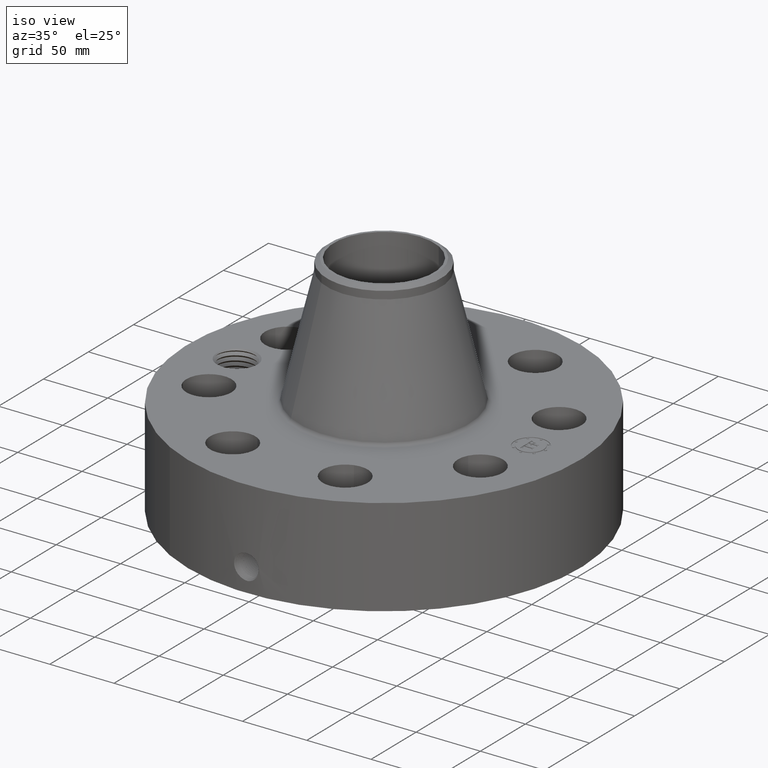
[diagram: clean part render]
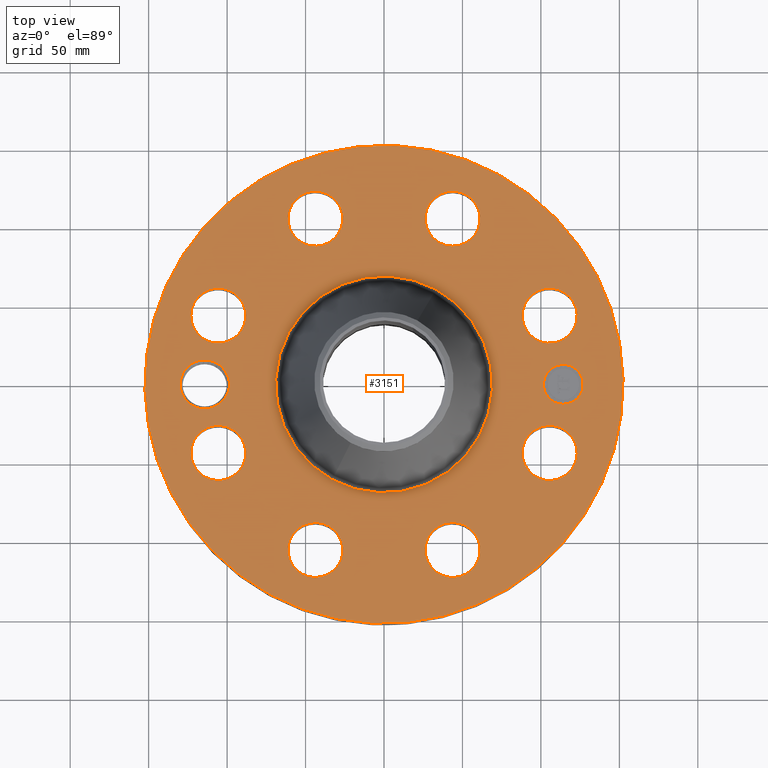
[diagram: tour spotlight — one face highlighted and labeled with its STEP entity id]
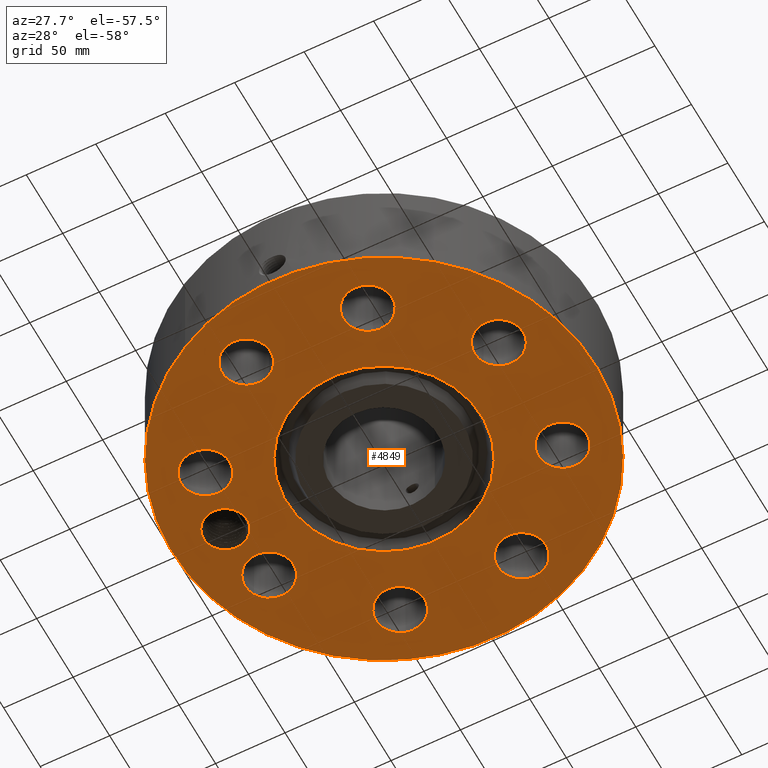
[diagram: tour spotlight — one face highlighted and labeled with its STEP entity id]
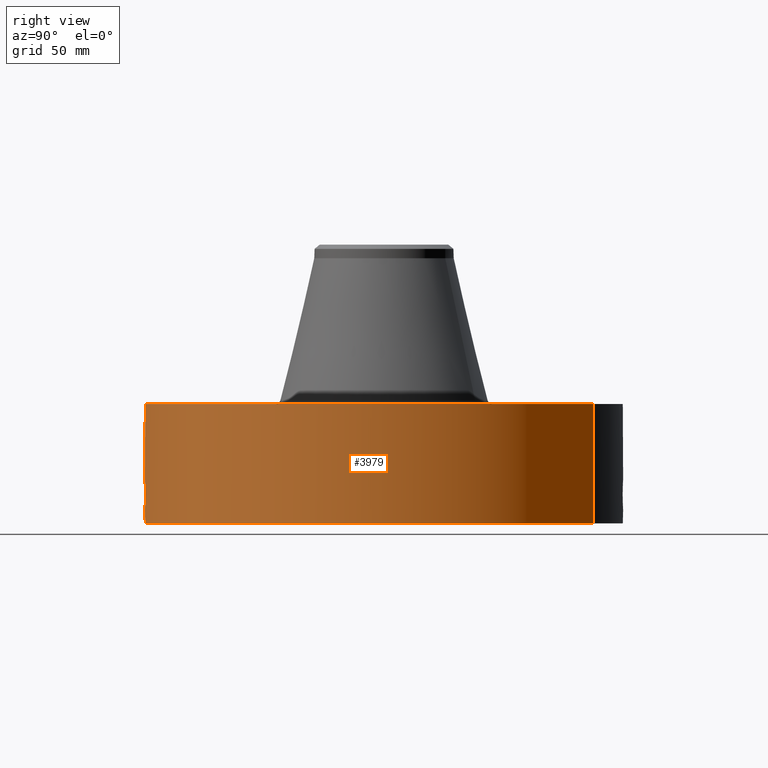
[diagram: tour spotlight — one face highlighted and labeled with its STEP entity id]
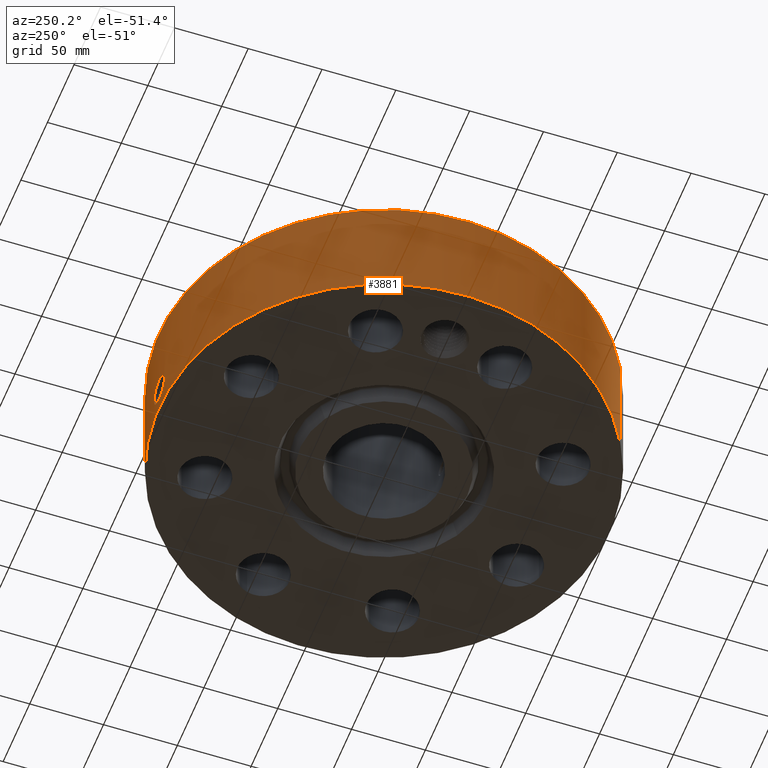
[diagram: tour spotlight — one face highlighted and labeled with its STEP entity id]
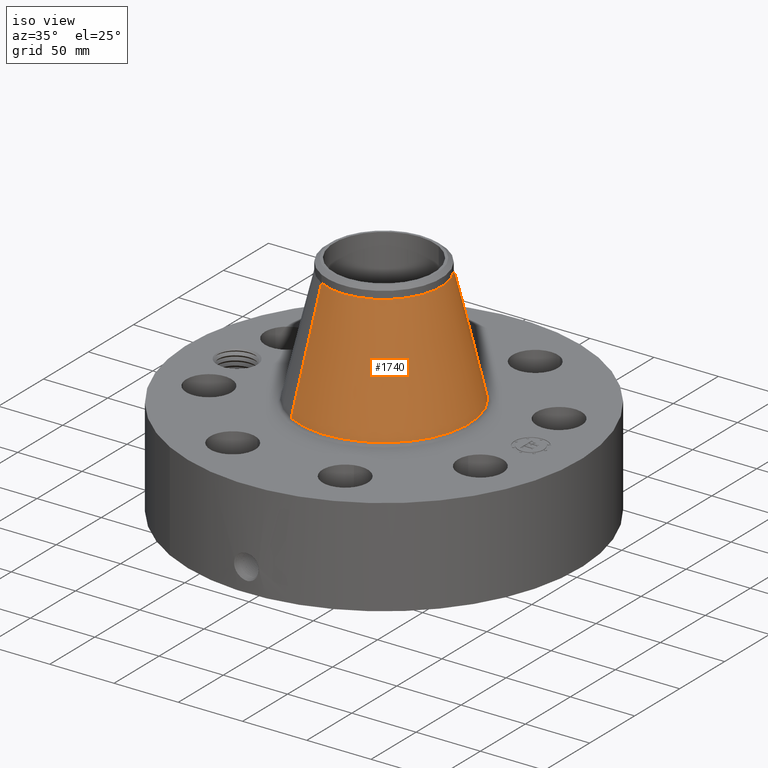
[diagram: tour spotlight — one face highlighted and labeled with its STEP entity id]
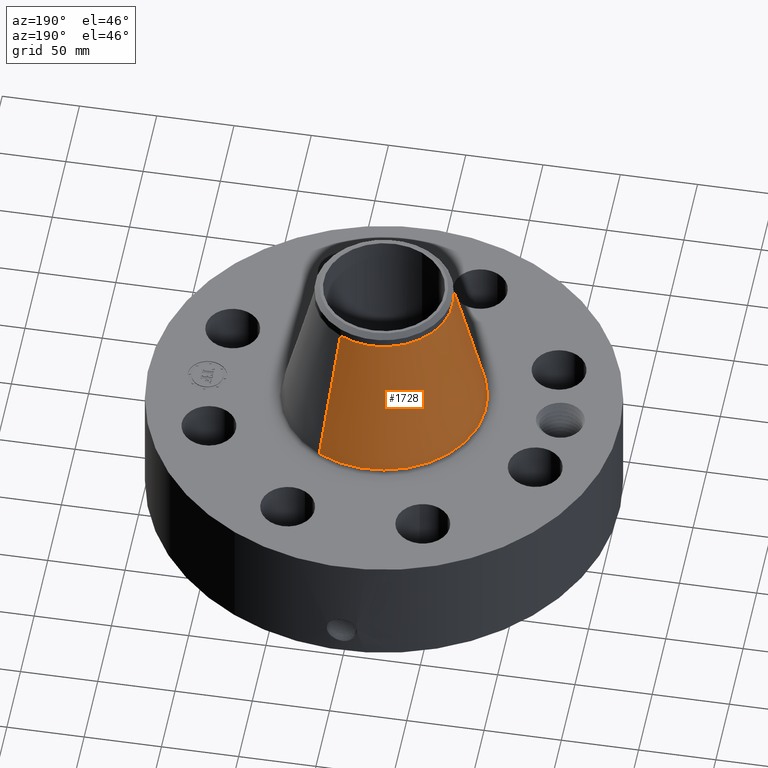
[diagram: tour spotlight — one face highlighted and labeled with its STEP entity id]
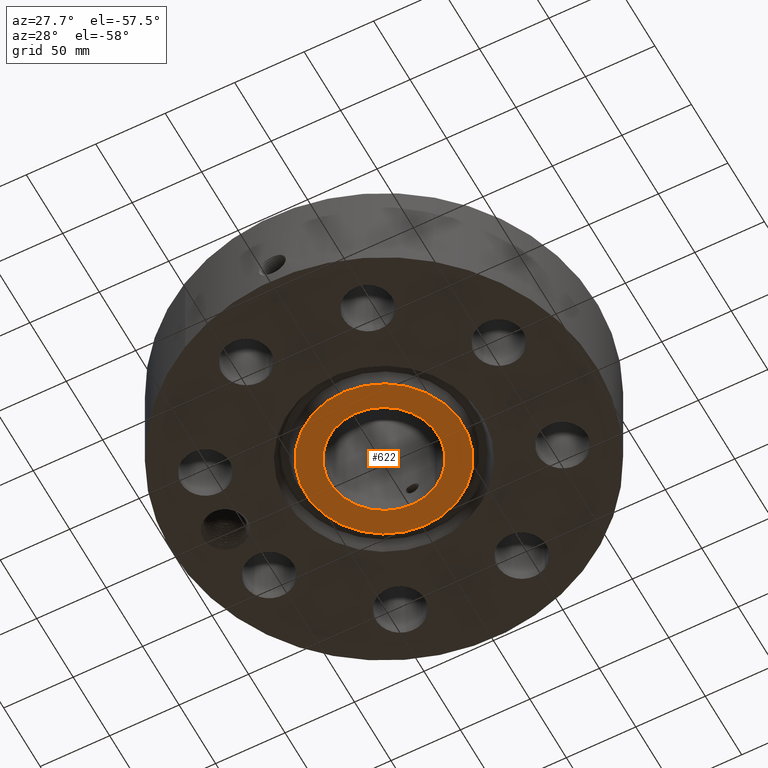
[diagram: tour spotlight — one face highlighted and labeled with its STEP entity id]
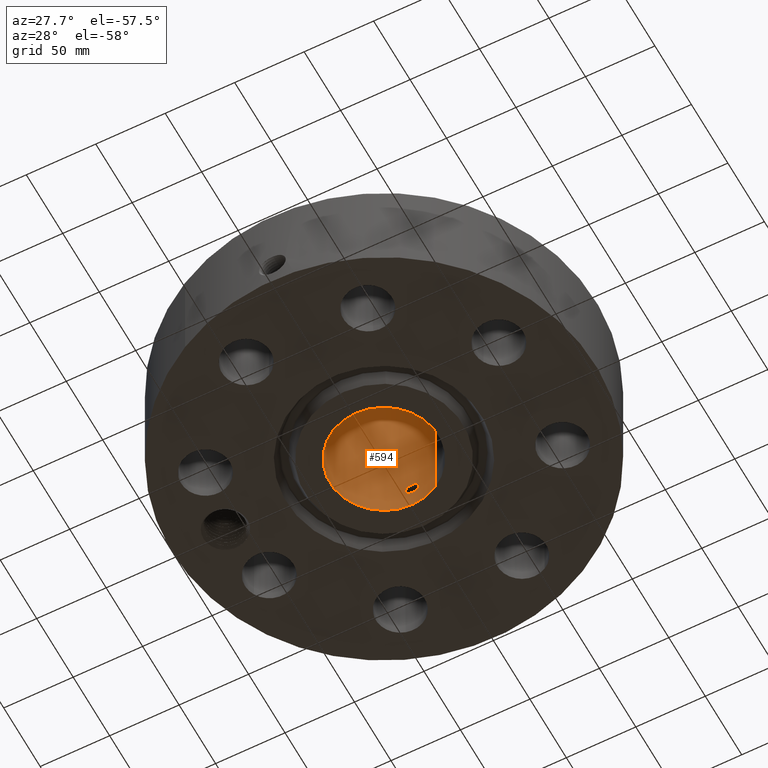
[diagram: tour spotlight — one face highlighted and labeled with its STEP entity id]
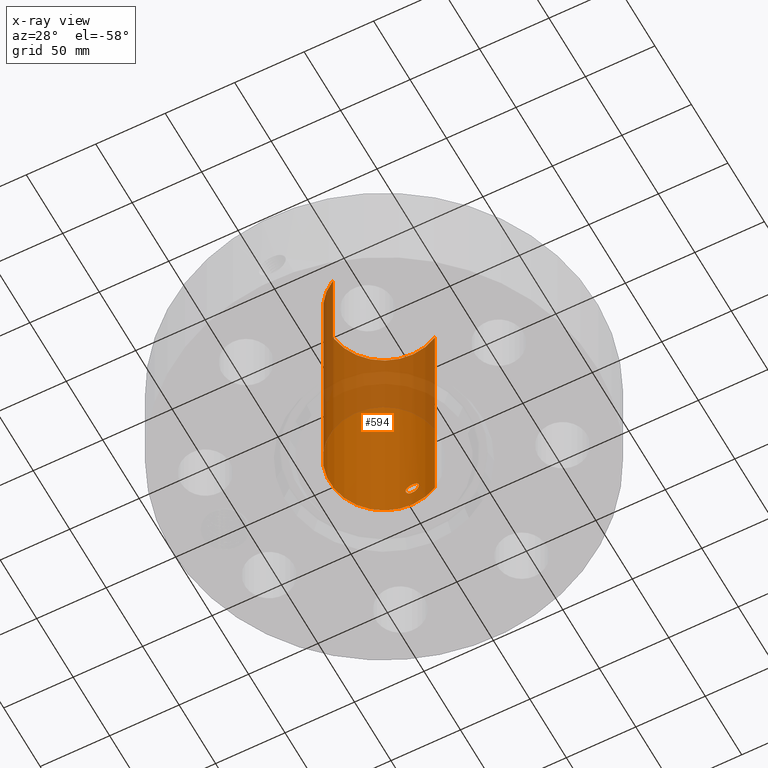
[diagram: x-ray of the same camera — body ghosted, this tour face saturated]
A machine part: a face-by-face anatomy tour. The part has 813 B-rep faces; the first image is the clean iso view, then the 8 largest visible faces are spotlighted one at a time (largest first), each with its STEP entity span.

Face 1 — top view, entity #3151. In plain terms, the highlighted planar face has unit normal (0, 0, -1).
Definition (entity closure, byte-faithful):
#2190=AXIS2_PLACEMENT_3D('Circle Axis2P3D',#2188,#2189,$) ;
#2216=AXIS2_PLACEMENT_3D('Circle Axis2P3D',#2214,#2215,$) ;
#2914=AXIS2_PLACEMENT_3D('Plane Axis2P3D',#2911,#2912,#2913) ;
#2918=AXIS2_PLACEMENT_3D('Circle Axis2P3D',#2916,#2917,$) ;
#2927=AXIS2_PLACEMENT_3D('Circle Axis2P3D',#2925,#2926,$) ;
#2961=AXIS2_PLACEMENT_3D('Circle Axis2P3D',#2959,#2960,$) ;
#2968=AXIS2_PLACEMENT_3D('Circle Axis2P3D',#2966,#2967,$) ;
#2975=AXIS2_PLACEMENT_3D('Circle Axis2P3D',#2973,#2974,$) ;
#2987=AXIS2_PLACEMENT_3D('Circle Axis2P3D',#2985,#2986,$) ;
#2996=AXIS2_PLACEMENT_3D('Circle Axis2P3D',#2994,#2995,$) ;
#3009=AXIS2_PLACEMENT_3D('Circle Axis2P3D',#3007,#3008,$) ;
#3018=AXIS2_PLACEMENT_3D('Circle Axis2P3D',#3016,#3017,$) ;
#3027=AXIS2_PLACEMENT_3D('Circle Axis2P3D',#3025,#3026,$) ;
#3036=AXIS2_PLACEMENT_3D('Circle Axis2P3D',#3034,#3035,$) ;
#3045=AXIS2_PLACEMENT_3D('Circle Axis2P3D',#3043,#3044,$) ;
#3054=AXIS2_PLACEMENT_3D('Circle Axis2P3D',#3052,#3053,$) ;
#3063=AXIS2_PLACEMENT_3D('Circle Axis2P3D',#3061,#3062,$) ;
#3072=AXIS2_PLACEMENT_3D('Circle Axis2P3D',#3070,#3071,$) ;
#3081=AXIS2_PLACEMENT_3D('Circle Axis2P3D',#3079,#3080,$) ;
#3090=AXIS2_PLACEMENT_3D('Circle Axis2P3D',#3088,#3089,$) ;
#3099=AXIS2_PLACEMENT_3D('Circle Axis2P3D',#3097,#3098,$) ;
#3108=AXIS2_PLACEMENT_3D('Circle Axis2P3D',#3106,#3107,$) ;
#3117=AXIS2_PLACEMENT_3D('Circle Axis2P3D',#3115,#3116,$) ;
#3126=AXIS2_PLACEMENT_3D('Circle Axis2P3D',#3124,#3125,$) ;
#3135=AXIS2_PLACEMENT_3D('Circle Axis2P3D',#3133,#3134,$) ;
#3144=AXIS2_PLACEMENT_3D('Circle Axis2P3D',#3142,#3143,$) ;
#2188=CARTESIAN_POINT('Axis2P3D Location',(0.,0.,2.99500000001)) ;
#2192=CARTESIAN_POINT('Vertex',(-1.30388588755,-2.38674710768,2.99500000001)) ;
#2194=CARTESIAN_POINT('Vertex',(1.30388588755,2.38674710768,2.99500000001)) ;
#2214=CARTESIAN_POINT('Axis2P3D Location',(0.,0.,2.99500000001)) ;
#2911=CARTESIAN_POINT('Axis2P3D Location',(0.,6.00000000002,2.99500000001)) ;
#2916=CARTESIAN_POINT('Axis2P3D Location',(0.,0.,2.99500000001)) ;
#2920=CARTESIAN_POINT('Vertex',(2.87655323164,5.26549537136,2.99500000001)) ;
#2922=CARTESIAN_POINT('Vertex',(-2.87655323164,-5.26549537136,2.99500000001)) ;
#2925=CARTESIAN_POINT('Axis2P3D Location',(0.,0.,2.99500000001)) ;
#2935=CARTESIAN_POINT('Control Point',(-3.87500000002,-1.1189649382E-015,2.99500000001)) ;
#2936=CARTESIAN_POINT('Control Point',(-3.87705142233,0.0564511992898,2.99500000001)) ;
#2937=CARTESIAN_POINT('Control Point',(-3.88548073755,0.112561680425,2.99500000001)) ;
#2938=CARTESIAN_POINT('Control Point',(-3.90023974767,0.167363712715,2.99500000001)) ;
#2939=CARTESIAN_POINT('Control Point',(-3.92105024981,0.219899046361,2.99500000001)) ;
#2940=CARTESIAN_POINT('Control Point',(-3.94744118531,0.269322940528,2.99500000001)) ;
#2941=CARTESIAN_POINT('Vertex',(-3.87500000002,-2.23792987641E-015,2.99500000001)) ;
#2943=CARTESIAN_POINT('Vertex',(-3.94744118531,0.269322940528,2.99500000001)) ;
#2947=CARTESIAN_POINT('Control Point',(-3.87500000002,0.,2.99500000001)) ;
#2948=CARTESIAN_POINT('Control Point',(-3.87686305278,-0.0512676314886,2.99500000001)) ;
#2949=CARTESIAN_POINT('Control Point',(-3.88398649713,-0.102254244847,2.99500000001)) ;
#2950=CARTESIAN_POINT('Control Point',(-3.89632551094,-0.152216993151,2.99500000001)) ;
#2951=CARTESIAN_POINT('Control Point',(-3.91547869889,-0.205418612382,2.99500000001)) ;
#2952=CARTESIAN_POINT('Control Point',(-3.94033933886,-0.255718032549,2.99500000001)) ;
#2953=CARTESIAN_POINT('Control Point',(-3.94271616362,-0.260400364357,2.99500000001)) ;
#2954=CARTESIAN_POINT('Control Point',(-3.94514225931,-0.265055859827,2.99500000001)) ;
#2955=CARTESIAN_POINT('Control Point',(-3.94761723184,-0.269683828635,2.99500000001)) ;
#2956=CARTESIAN_POINT('Vertex',(-3.94761723184,-0.269683828635,2.99500000001)) ;
#2959=CARTESIAN_POINT('Axis2P3D Location',(-4.50000000002,1.1189649382E-015,2.99500000001)) ;
#2963=CARTESIAN_POINT('Vertex',(-3.96054999922,-0.294702878581,2.99500000001)) ;
#2966=CARTESIAN_POINT('Axis2P3D Location',(-4.50000000002,1.1189649382E-015,2.99500000001)) ;
#2970=CARTESIAN_POINT('Vertex',(-5.03945000081,0.294702878581,2.99500000001)) ;
#2973=CARTESIAN_POINT('Axis2P3D Location',(-4.50000000002,1.1189649382E-015,2.99500000001)) ;
#2985=CARTESIAN_POINT('Axis2P3D Location',(4.15745789632,-1.72207544565,2.99500000001)) ;
#2989=CARTESIAN_POINT('Vertex',(3.55192592861,-1.39127182401,2.99500000001)) ;
#2991=CARTESIAN_POINT('Vertex',(4.76298986402,-2.05287906729,2.99500000001)) ;
#2994=CARTESIAN_POINT('Axis2P3D Location',(4.15745789632,-1.72207544565,2.99500000001)) ;
#3007=CARTESIAN_POINT('Axis2P3D Location',(1.72207544565,-4.15745789632,2.99500000001)) ;
#3011=CARTESIAN_POINT('Vertex',(1.91633772214,-4.81954714101,2.99500000001)) ;
#3013=CARTESIAN_POINT('Vertex',(1.52781316916,-3.49536865163,2.99500000001)) ;
#3016=CARTESIAN_POINT('Axis2P3D Location',(1.72207544565,-4.15745789632,2.99500000001)) ;
#3025=CARTESIAN_POINT('Axis2P3D Location',(-1.72207544565,-4.15745789632,2.99500000001)) ;
#3029=CARTESIAN_POINT('Vertex',(-2.05287906729,-4.76298986402,2.99500000001)) ;
#3031=CARTESIAN_POINT('Vertex',(-1.39127182401,-3.55192592861,2.99500000001)) ;
#3034=CARTESIAN_POINT('Axis2P3D Location',(-1.72207544565,-4.15745789632,2.99500000001)) ;
#3043=CARTESIAN_POINT('Axis2P3D Location',(-4.15745789632,-1.72207544565,2.99500000001)) ;
#3047=CARTESIAN_POINT('Vertex',(-4.81954714101,-1.91633772214,2.99500000001)) ;
#3049=CARTESIAN_POINT('Vertex',(-3.49536865163,-1.52781316916,2.99500000001)) ;
#3052=CARTESIAN_POINT('Axis2P3D Location',(-4.15745789632,-1.72207544565,2.99500000001)) ;
#3061=CARTESIAN_POINT('Axis2P3D Location',(-4.15745789632,1.72207544565,2.99500000001)) ;
#3065=CARTESIAN_POINT('Vertex',(-4.76298986402,2.05287906729,2.99500000001)) ;
#3067=CARTESIAN_POINT('Vertex',(-3.55192592861,1.39127182401,2.99500000001)) ;
#3070=CARTESIAN_POINT('Axis2P3D Location',(-4.15745789632,1.72207544565,2.99500000001)) ;
#3079=CARTESIAN_POINT('Axis2P3D Location',(-1.72207544565,4.15745789632,2.99500000001)) ;
#3083=CARTESIAN_POINT('Vertex',(-1.91633772214,4.81954714101,2.99500000001)) ;
#3085=CARTESIAN_POINT('Vertex',(-1.52781316916,3.49536865163,2.99500000001)) ;
#3088=CARTESIAN_POINT('Axis2P3D Location',(-1.72207544565,4.15745789632,2.99500000001)) ;
#3097=CARTESIAN_POINT('Axis2P3D Location',(1.72207544565,4.15745789632,2.99500000001)) ;
#3101=CARTESIAN_POINT('Vertex',(2.05287906729,4.76298986402,2.99500000001)) ;
#3103=CARTESIAN_POINT('Vertex',(1.39127182401,3.55192592861,2.99500000001)) ;
#3106=CARTESIAN_POINT('Axis2P3D Location',(1.72207544565,4.15745789632,2.99500000001)) ;
#3115=CARTESIAN_POINT('Axis2P3D Location',(4.15745789632,1.72207544565,2.99500000001)) ;
#3119=CARTESIAN_POINT('Vertex',(4.81954714101,1.91633772214,2.99500000001)) ;
#3121=CARTESIAN_POINT('Vertex',(3.49536865163,1.52781316916,2.99500000001)) ;
#3124=CARTESIAN_POINT('Axis2P3D Location',(4.15745789632,1.72207544565,2.99500000001)) ;
#3133=CARTESIAN_POINT('Axis2P3D Location',(4.50000000002,-1.00706844438E-014,2.99500000001)) ;
#3137=CARTESIAN_POINT('Vertex',(4.50000000002,0.499999995002,2.99500000001)) ;
#3139=CARTESIAN_POINT('Vertex',(4.50000000002,-0.499999995002,2.99500000001)) ;
#3142=CARTESIAN_POINT('Axis2P3D Location',(4.50000000002,-1.00706844438E-014,2.99500000001)) ;
#2189=DIRECTION('Axis2P3D Direction',(0.,0.,-0.0393700787402)) ;
#2215=DIRECTION('Axis2P3D Direction',(0.,0.,-0.0393700787402)) ;
#2912=DIRECTION('Axis2P3D Direction',(0.,0.,-0.0393700787402)) ;
#2913=DIRECTION('Axis2P3D XDirection',(0.0393700787402,0.,0.)) ;
#2917=DIRECTION('Axis2P3D Direction',(0.,0.,-0.0393700787402)) ;
#2926=DIRECTION('Axis2P3D Direction',(0.,0.,-0.0393700787402)) ;
#2960=DIRECTION('Axis2P3D Direction',(0.,0.,-0.0393700787402)) ;
#2967=DIRECTION('Axis2P3D Direction',(0.,0.,-0.0393700787402)) ;
#2974=DIRECTION('Axis2P3D Direction',(0.,0.,-0.0393700787402)) ;
#2986=DIRECTION('Axis2P3D Direction',(0.,0.,-0.0393700787402)) ;
#2995=DIRECTION('Axis2P3D Direction',(0.,0.,-0.0393700787402)) ;
#3008=DIRECTION('Axis2P3D Direction',(0.,0.,-0.0393700787402)) ;
#3017=DIRECTION('Axis2P3D Direction',(0.,0.,-0.0393700787402)) ;
#3026=DIRECTION('Axis2P3D Direction',(0.,0.,-0.0393700787402)) ;
#3035=DIRECTION('Axis2P3D Direction',(0.,0.,-0.0393700787402)) ;
#3044=DIRECTION('Axis2P3D Direction',(0.,0.,-0.0393700787402)) ;
#3053=DIRECTION('Axis2P3D Direction',(0.,0.,-0.0393700787402)) ;
#3062=DIRECTION('Axis2P3D Direction',(0.,0.,-0.0393700787402)) ;
#3071=DIRECTION('Axis2P3D Direction',(0.,0.,-0.0393700787402)) ;
#3080=DIRECTION('Axis2P3D Direction',(0.,0.,-0.0393700787402)) ;
#3089=DIRECTION('Axis2P3D Direction',(0.,0.,-0.0393700787402)) ;
#3098=DIRECTION('Axis2P3D Direction',(0.,0.,-0.0393700787402)) ;
#3107=DIRECTION('Axis2P3D Direction',(0.,0.,-0.0393700787402)) ;
#3116=DIRECTION('Axis2P3D Direction',(0.,0.,-0.0393700787402)) ;
#3125=DIRECTION('Axis2P3D Direction',(0.,0.,-0.0393700787402)) ;
#3134=DIRECTION('Axis2P3D Direction',(0.,0.,-0.0393700787402)) ;
#3143=DIRECTION('Axis2P3D Direction',(0.,0.,-0.0393700787402)) ;
#2931=ORIENTED_EDGE('',*,*,#2924,.F.) ;
#2932=ORIENTED_EDGE('',*,*,#2929,.F.) ;
#2979=ORIENTED_EDGE('',*,*,#2945,.F.) ;
#2980=ORIENTED_EDGE('',*,*,#2958,.T.) ;
#2981=ORIENTED_EDGE('',*,*,#2965,.T.) ;
#2982=ORIENTED_EDGE('',*,*,#2972,.T.) ;
#2983=ORIENTED_EDGE('',*,*,#2977,.T.) ;
#3000=ORIENTED_EDGE('',*,*,#2993,.T.) ;
#3001=ORIENTED_EDGE('',*,*,#2998,.T.) ;
#3004=ORIENTED_EDGE('',*,*,#2196,.T.) ;
#3005=ORIENTED_EDGE('',*,*,#2218,.T.) ;
#3022=ORIENTED_EDGE('',*,*,#3015,.T.) ;
#3023=ORIENTED_EDGE('',*,*,#3020,.T.) ;
#3040=ORIENTED_EDGE('',*,*,#3033,.T.) ;
#3041=ORIENTED_EDGE('',*,*,#3038,.T.) ;
#3058=ORIENTED_EDGE('',*,*,#3051,.T.) ;
#3059=ORIENTED_EDGE('',*,*,#3056,.T.) ;
#3076=ORIENTED_EDGE('',*,*,#3069,.T.) ;
#3077=ORIENTED_EDGE('',*,*,#3074,.T.) ;
#3094=ORIENTED_EDGE('',*,*,#3087,.T.) ;
#3095=ORIENTED_EDGE('',*,*,#3092,.T.) ;
#3112=ORIENTED_EDGE('',*,*,#3105,.T.) ;
#3113=ORIENTED_EDGE('',*,*,#3110,.T.) ;
#3130=ORIENTED_EDGE('',*,*,#3123,.T.) ;
#3131=ORIENTED_EDGE('',*,*,#3128,.T.) ;
#3148=ORIENTED_EDGE('',*,*,#3141,.T.) ;
#3149=ORIENTED_EDGE('',*,*,#3146,.T.) ;
#2984=FACE_BOUND('',#2978,.T.) ;
#3002=FACE_BOUND('',#2999,.T.) ;
#3006=FACE_BOUND('',#3003,.T.) ;
#3024=FACE_BOUND('',#3021,.T.) ;
#3042=FACE_BOUND('',#3039,.T.) ;
#3060=FACE_BOUND('',#3057,.T.) ;
#3078=FACE_BOUND('',#3075,.T.) ;
#3096=FACE_BOUND('',#3093,.T.) ;
#3114=FACE_BOUND('',#3111,.T.) ;
#3132=FACE_BOUND('',#3129,.T.) ;
#3150=FACE_BOUND('',#3147,.T.) ;
#3151=ADVANCED_FACE('PartBody',(#2933,#2984,#3002,#3006,#3024,#3042,#3060,#3078,#3096,#3114,#3132,#3150),#2915,.F.) ;
#2934=B_SPLINE_CURVE_WITH_KNOTS('',5,(#2935,#2936,#2937,#2938,#2939,#2940),.UNSPECIFIED.,.F.,.U.,(6,6),(0.,9.8697104643),.UNSPECIFIED.) ;
#2946=B_SPLINE_CURVE_WITH_KNOTS('',5,(#2947,#2948,#2949,#2950,#2951,#2952,#2953,#2954,#2955),.UNSPECIFIED.,.F.,.U.,(6,3,6),(0.,8.96343541589,9.8891467733),.UNSPECIFIED.) ;
#2191=CIRCLE('generated circle',#2190,2.71968383526) ;
#2217=CIRCLE('generated circle',#2216,2.71968383526) ;
#2919=CIRCLE('generated circle',#2918,6.00000000002) ;
#2928=CIRCLE('generated circle',#2927,6.00000000002) ;
#2962=CIRCLE('generated circle',#2961,0.614700000002) ;
#2969=CIRCLE('generated circle',#2968,0.614700000002) ;
#2976=CIRCLE('generated circle',#2975,0.614700000002) ;
#2988=CIRCLE('generated circle',#2987,0.690000000003) ;
#2997=CIRCLE('generated circle',#2996,0.690000000003) ;
#3010=CIRCLE('generated circle',#3009,0.690000000003) ;
#3019=CIRCLE('generated circle',#3018,0.690000000003) ;
#3028=CIRCLE('generated circle',#3027,0.690000000003) ;
#3037=CIRCLE('generated circle',#3036,0.690000000003) ;
#3046=CIRCLE('generated circle',#3045,0.690000000003) ;
#3055=CIRCLE('generated circle',#3054,0.690000000003) ;
#3064=CIRCLE('generated circle',#3063,0.690000000003) ;
#3073=CIRCLE('generated circle',#3072,0.690000000003) ;
#3082=CIRCLE('generated circle',#3081,0.690000000003) ;
#3091=CIRCLE('generated circle',#3090,0.690000000003) ;
#3100=CIRCLE('generated circle',#3099,0.690000000003) ;
#3109=CIRCLE('generated circle',#3108,0.690000000003) ;
#3118=CIRCLE('generated circle',#3117,0.690000000003) ;
#3127=CIRCLE('generated circle',#3126,0.690000000003) ;
#3136=CIRCLE('generated circle',#3135,0.499999995002) ;
#3145=CIRCLE('generated circle',#3144,0.499999995002) ;
#2196=EDGE_CURVE('',#2193,#2195,#2191,.T.) ;
#2218=EDGE_CURVE('',#2195,#2193,#2217,.T.) ;
#2924=EDGE_CURVE('',#2921,#2923,#2919,.T.) ;
#2929=EDGE_CURVE('',#2923,#2921,#2928,.T.) ;
#2945=EDGE_CURVE('',#2942,#2944,#2934,.T.) ;
#2958=EDGE_CURVE('',#2942,#2957,#2946,.T.) ;
#2965=EDGE_CURVE('',#2957,#2964,#2962,.T.) ;
#2972=EDGE_CURVE('',#2964,#2971,#2969,.T.) ;
#2977=EDGE_CURVE('',#2971,#2944,#2976,.T.) ;
#2993=EDGE_CURVE('',#2990,#2992,#2988,.T.) ;
#2998=EDGE_CURVE('',#2992,#2990,#2997,.T.) ;
#3015=EDGE_CURVE('',#3012,#3014,#3010,.T.) ;
#3020=EDGE_CURVE('',#3014,#3012,#3019,.T.) ;
#3033=EDGE_CURVE('',#3030,#3032,#3028,.T.) ;
#3038=EDGE_CURVE('',#3032,#3030,#3037,.T.) ;
#3051=EDGE_CURVE('',#3048,#3050,#3046,.T.) ;
#3056=EDGE_CURVE('',#3050,#3048,#3055,.T.) ;
#3069=EDGE_CURVE('',#3066,#3068,#3064,.T.) ;
#3074=EDGE_CURVE('',#3068,#3066,#3073,.T.) ;
#3087=EDGE_CURVE('',#3084,#3086,#3082,.T.) ;
#3092=EDGE_CURVE('',#3086,#3084,#3091,.T.) ;
#3105=EDGE_CURVE('',#3102,#3104,#3100,.T.) ;
#3110=EDGE_CURVE('',#3104,#3102,#3109,.T.) ;
#3123=EDGE_CURVE('',#3120,#3122,#3118,.T.) ;
#3128=EDGE_CURVE('',#3122,#3120,#3127,.T.) ;
#3141=EDGE_CURVE('',#3138,#3140,#3136,.T.) ;
#3146=EDGE_CURVE('',#3140,#3138,#3145,.T.) ;
#2930=EDGE_LOOP('',(#2931,#2932)) ;
#2978=EDGE_LOOP('',(#2979,#2980,#2981,#2982,#2983)) ;
#2999=EDGE_LOOP('',(#3000,#3001)) ;
#3003=EDGE_LOOP('',(#3004,#3005)) ;
#3021=EDGE_LOOP('',(#3022,#3023)) ;
#3039=EDGE_LOOP('',(#3040,#3041)) ;
#3057=EDGE_LOOP('',(#3058,#3059)) ;
#3075=EDGE_LOOP('',(#3076,#3077)) ;
#3093=EDGE_LOOP('',(#3094,#3095)) ;
#3111=EDGE_LOOP('',(#3112,#3113)) ;
#3129=EDGE_LOOP('',(#3130,#3131)) ;
#3147=EDGE_LOOP('',(#3148,#3149)) ;
#2933=FACE_OUTER_BOUND('',#2930,.T.) ;
#2915=PLANE('',#2914) ;
#2193=VERTEX_POINT('',#2192) ;
#2195=VERTEX_POINT('',#2194) ;
#2921=VERTEX_POINT('',#2920) ;
#2923=VERTEX_POINT('',#2922) ;
#2942=VERTEX_POINT('',#2941) ;
#2944=VERTEX_POINT('',#2943) ;
#2957=VERTEX_POINT('',#2956) ;
#2964=VERTEX_POINT('',#2963) ;
#2971=VERTEX_POINT('',#2970) ;
#2990=VERTEX_POINT('',#2989) ;
#2992=VERTEX_POINT('',#2991) ;
#3012=VERTEX_POINT('',#3011) ;
#3014=VERTEX_POINT('',#3013) ;
#3030=VERTEX_POINT('',#3029) ;
#3032=VERTEX_POINT('',#3031) ;
#3048=VERTEX_POINT('',#3047) ;
#3050=VERTEX_POINT('',#3049) ;
#3066=VERTEX_POINT('',#3065) ;
#3068=VERTEX_POINT('',#3067) ;
#3084=VERTEX_POINT('',#3083) ;
#3086=VERTEX_POINT('',#3085) ;
#3102=VERTEX_POINT('',#3101) ;
#3104=VERTEX_POINT('',#3103) ;
#3120=VERTEX_POINT('',#3119) ;
#3122=VERTEX_POINT('',#3121) ;
#3138=VERTEX_POINT('',#3137) ;
#3140=VERTEX_POINT('',#3139) ;

Face 2 — auxiliary view, entity #4849. In plain terms, the highlighted planar face has unit normal (0, 0, -1).
Definition (entity closure, byte-faithful):
#598=AXIS2_PLACEMENT_3D('Plane Axis2P3D',#595,#596,#597) ;
#3473=AXIS2_PLACEMENT_3D('Circle Axis2P3D',#3471,#3472,$) ;
#3499=AXIS2_PLACEMENT_3D('Circle Axis2P3D',#3497,#3498,$) ;
#3772=AXIS2_PLACEMENT_3D('Circle Axis2P3D',#3770,#3771,$) ;
#3884=AXIS2_PLACEMENT_3D('Circle Axis2P3D',#3882,#3883,$) ;
#4125=AXIS2_PLACEMENT_3D('Circle Axis2P3D',#4123,#4124,$) ;
#4144=AXIS2_PLACEMENT_3D('Circle Axis2P3D',#4142,#4143,$) ;
#4168=AXIS2_PLACEMENT_3D('Circle Axis2P3D',#4166,#4167,$) ;
#4187=AXIS2_PLACEMENT_3D('Circle Axis2P3D',#4185,#4186,$) ;
#4211=AXIS2_PLACEMENT_3D('Circle Axis2P3D',#4209,#4210,$) ;
#4230=AXIS2_PLACEMENT_3D('Circle Axis2P3D',#4228,#4229,$) ;
#4254=AXIS2_PLACEMENT_3D('Circle Axis2P3D',#4252,#4253,$) ;
#4273=AXIS2_PLACEMENT_3D('Circle Axis2P3D',#4271,#4272,$) ;
#4297=AXIS2_PLACEMENT_3D('Circle Axis2P3D',#4295,#4296,$) ;
#4316=AXIS2_PLACEMENT_3D('Circle Axis2P3D',#4314,#4315,$) ;
#4340=AXIS2_PLACEMENT_3D('Circle Axis2P3D',#4338,#4339,$) ;
#4359=AXIS2_PLACEMENT_3D('Circle Axis2P3D',#4357,#4358,$) ;
#4383=AXIS2_PLACEMENT_3D('Circle Axis2P3D',#4381,#4382,$) ;
#4402=AXIS2_PLACEMENT_3D('Circle Axis2P3D',#4400,#4401,$) ;
#4426=AXIS2_PLACEMENT_3D('Circle Axis2P3D',#4424,#4425,$) ;
#4445=AXIS2_PLACEMENT_3D('Circle Axis2P3D',#4443,#4444,$) ;
#4756=AXIS2_PLACEMENT_3D('Circle Axis2P3D',#4754,#4755,$) ;
#4765=AXIS2_PLACEMENT_3D('Circle Axis2P3D',#4763,#4764,$) ;
#4772=AXIS2_PLACEMENT_3D('Circle Axis2P3D',#4770,#4771,$) ;
#595=CARTESIAN_POINT('Axis2P3D Location',(0.,1.53400000001,0.)) ;
#3471=CARTESIAN_POINT('Axis2P3D Location',(0.,0.,0.)) ;
#3475=CARTESIAN_POINT('Vertex',(-1.32585132702,2.42695457492,0.)) ;
#3477=CARTESIAN_POINT('Vertex',(1.32585132702,-2.42695457492,0.)) ;
#3497=CARTESIAN_POINT('Axis2P3D Location',(0.,0.,0.)) ;
#3770=CARTESIAN_POINT('Axis2P3D Location',(0.,0.,5.59482469102E-016)) ;
#3774=CARTESIAN_POINT('Vertex',(-2.87655323164,-5.26549537136,5.59482469102E-016)) ;
#3776=CARTESIAN_POINT('Vertex',(2.87655323164,5.26549537136,5.59482469102E-016)) ;
#3882=CARTESIAN_POINT('Axis2P3D Location',(0.,0.,5.59482469102E-016)) ;
#4120=CARTESIAN_POINT('Vertex',(4.76298986402,-2.05287906729,0.)) ;
#4123=CARTESIAN_POINT('Axis2P3D Location',(4.15745789632,-1.72207544565,0.)) ;
#4127=CARTESIAN_POINT('Vertex',(3.55192592861,-1.39127182401,0.)) ;
#4142=CARTESIAN_POINT('Axis2P3D Location',(4.15745789632,-1.72207544565,0.)) ;
#4163=CARTESIAN_POINT('Vertex',(1.52781316916,-3.49536865163,0.)) ;
#4166=CARTESIAN_POINT('Axis2P3D Location',(1.72207544565,-4.15745789632,0.)) ;
#4170=CARTESIAN_POINT('Vertex',(1.91633772214,-4.81954714101,0.)) ;
#4185=CARTESIAN_POINT('Axis2P3D Location',(1.72207544565,-4.15745789632,0.)) ;
#4206=CARTESIAN_POINT('Vertex',(-1.39127182401,-3.55192592861,0.)) ;
#4209=CARTESIAN_POINT('Axis2P3D Location',(-1.72207544565,-4.15745789632,0.)) ;
#4213=CARTESIAN_POINT('Vertex',(-2.05287906729,-4.76298986402,0.)) ;
#4228=CARTESIAN_POINT('Axis2P3D Location',(-1.72207544565,-4.15745789632,0.)) ;
#4249=CARTESIAN_POINT('Vertex',(-3.49536865163,-1.52781316916,0.)) ;
#4252=CARTESIAN_POINT('Axis2P3D Location',(-4.15745789632,-1.72207544565,0.)) ;
#4256=CARTESIAN_POINT('Vertex',(-4.81954714101,-1.91633772214,0.)) ;
#4271=CARTESIAN_POINT('Axis2P3D Location',(-4.15745789632,-1.72207544565,0.)) ;
#4292=CARTESIAN_POINT('Vertex',(-3.55192592861,1.39127182401,0.)) ;
#4295=CARTESIAN_POINT('Axis2P3D Location',(-4.15745789632,1.72207544565,0.)) ;
#4299=CARTESIAN_POINT('Vertex',(-4.76298986402,2.05287906729,0.)) ;
#4314=CARTESIAN_POINT('Axis2P3D Location',(-4.15745789632,1.72207544565,0.)) ;
#4335=CARTESIAN_POINT('Vertex',(-1.52781316916,3.49536865163,0.)) ;
#4338=CARTESIAN_POINT('Axis2P3D Location',(-1.72207544565,4.15745789632,0.)) ;
#4342=CARTESIAN_POINT('Vertex',(-1.91633772214,4.81954714101,0.)) ;
#4357=CARTESIAN_POINT('Axis2P3D Location',(-1.72207544565,4.15745789632,0.)) ;
#4378=CARTESIAN_POINT('Vertex',(1.39127182401,3.55192592861,0.)) ;
#4381=CARTESIAN_POINT('Axis2P3D Location',(1.72207544565,4.15745789632,0.)) ;
#4385=CARTESIAN_POINT('Vertex',(2.05287906729,4.76298986402,0.)) ;
#4400=CARTESIAN_POINT('Axis2P3D Location',(1.72207544565,4.15745789632,0.)) ;
#4421=CARTESIAN_POINT('Vertex',(3.49536865163,1.52781316916,0.)) ;
#4424=CARTESIAN_POINT('Axis2P3D Location',(4.15745789632,1.72207544565,0.)) ;
#4428=CARTESIAN_POINT('Vertex',(4.81954714101,1.91633772214,0.)) ;
#4443=CARTESIAN_POINT('Axis2P3D Location',(4.15745789632,1.72207544565,0.)) ;
#4754=CARTESIAN_POINT('Axis2P3D Location',(-4.50000000002,0.,0.)) ;
#4758=CARTESIAN_POINT('Vertex',(-5.03945000081,0.294702878581,0.)) ;
#4760=CARTESIAN_POINT('Vertex',(-4.03501767779,0.402054138168,0.)) ;
#4763=CARTESIAN_POINT('Axis2P3D Location',(-4.50000000002,0.,0.)) ;
#4767=CARTESIAN_POINT('Vertex',(-3.96054999922,-0.294702878581,0.)) ;
#4770=CARTESIAN_POINT('Axis2P3D Location',(-4.50000000002,0.,0.)) ;
#4774=CARTESIAN_POINT('Vertex',(-3.89684374207,-0.11856904527,0.)) ;
#4778=CARTESIAN_POINT('Control Point',(-3.880900324,-0.000229493969676,0.)) ;
#4779=CARTESIAN_POINT('Control Point',(-3.88178761828,-0.0241743415851,0.)) ;
#4780=CARTESIAN_POINT('Control Point',(-3.88383337103,-0.0480560788105,0.)) ;
#4781=CARTESIAN_POINT('Control Point',(-3.88703360602,-0.0717989054684,0.)) ;
#4782=CARTESIAN_POINT('Control Point',(-3.8913766633,-0.0953276310169,0.)) ;
#4783=CARTESIAN_POINT('Control Point',(-3.89684374207,-0.11856904527,0.)) ;
#4784=CARTESIAN_POINT('Vertex',(-3.880900324,-0.000229493969676,2.18547839493E-018)) ;
#4788=CARTESIAN_POINT('Control Point',(-3.89591227761,0.160322725179,0.)) ;
#4789=CARTESIAN_POINT('Control Point',(-3.88874164343,0.12871545432,0.)) ;
#4790=CARTESIAN_POINT('Control Point',(-3.8836287308,0.096676265068,0.)) ;
#4791=CARTESIAN_POINT('Control Point',(-3.8806116028,0.0643828550236,0.)) ;
#4792=CARTESIAN_POINT('Control Point',(-3.87970531502,0.0320194551355,0.)) ;
#4793=CARTESIAN_POINT('Control Point',(-3.880900324,-0.000229493969676,0.)) ;
#4794=CARTESIAN_POINT('Vertex',(-3.89591227761,0.160322725178,-9.83465277719E-018)) ;
#4798=CARTESIAN_POINT('Control Point',(-3.89591227761,0.160322725178,0.)) ;
#4799=CARTESIAN_POINT('Control Point',(-3.91237532574,0.214357847272,0.)) ;
#4800=CARTESIAN_POINT('Control Point',(-3.93491371748,0.266422378588,0.)) ;
#4801=CARTESIAN_POINT('Control Point',(-3.96323402251,0.315603911651,0.)) ;
#4802=CARTESIAN_POINT('Control Point',(-3.9968253235,0.361047084082,0.)) ;
#4803=CARTESIAN_POINT('Control Point',(-4.03501767779,0.402054138168,0.)) ;
#596=DIRECTION('Axis2P3D Direction',(0.,0.,-0.0393700787402)) ;
#597=DIRECTION('Axis2P3D XDirection',(0.0393700787402,0.,0.)) ;
#3472=DIRECTION('Axis2P3D Direction',(0.,0.,-0.0393700787402)) ;
#3498=DIRECTION('Axis2P3D Direction',(0.,0.,-0.0393700787402)) ;
#3771=DIRECTION('Axis2P3D Direction',(0.,0.,-0.0393700787402)) ;
#3883=DIRECTION('Axis2P3D Direction',(0.,0.,-0.0393700787402)) ;
#4124=DIRECTION('Axis2P3D Direction',(0.,-0.,-0.0393700787402)) ;
#4143=DIRECTION('Axis2P3D Direction',(0.,-0.,-0.0393700787402)) ;
#4167=DIRECTION('Axis2P3D Direction',(0.,-0.,-0.0393700787402)) ;
#4186=DIRECTION('Axis2P3D Direction',(0.,-0.,-0.0393700787402)) ;
#4210=DIRECTION('Axis2P3D Direction',(0.,-0.,-0.0393700787402)) ;
#4229=DIRECTION('Axis2P3D Direction',(0.,-0.,-0.0393700787402)) ;
#4253=DIRECTION('Axis2P3D Direction',(-0.,0.,-0.0393700787402)) ;
#4272=DIRECTION('Axis2P3D Direction',(-0.,0.,-0.0393700787402)) ;
#4296=DIRECTION('Axis2P3D Direction',(-0.,0.,-0.0393700787402)) ;
#4315=DIRECTION('Axis2P3D Direction',(-0.,0.,-0.0393700787402)) ;
#4339=DIRECTION('Axis2P3D Direction',(0.,0.,-0.0393700787402)) ;
#4358=DIRECTION('Axis2P3D Direction',(0.,0.,-0.0393700787402)) ;
#4382=DIRECTION('Axis2P3D Direction',(0.,0.,-0.0393700787402)) ;
#4401=DIRECTION('Axis2P3D Direction',(0.,0.,-0.0393700787402)) ;
#4425=DIRECTION('Axis2P3D Direction',(0.,0.,-0.0393700787402)) ;
#4444=DIRECTION('Axis2P3D Direction',(0.,0.,-0.0393700787402)) ;
#4755=DIRECTION('Axis2P3D Direction',(0.,0.,-0.0393700787402)) ;
#4764=DIRECTION('Axis2P3D Direction',(0.,0.,-0.0393700787402)) ;
#4771=DIRECTION('Axis2P3D Direction',(0.,0.,-0.0393700787402)) ;
#4751=ORIENTED_EDGE('',*,*,#3778,.T.) ;
#4752=ORIENTED_EDGE('',*,*,#3886,.T.) ;
#4806=ORIENTED_EDGE('',*,*,#4762,.F.) ;
#4807=ORIENTED_EDGE('',*,*,#4769,.F.) ;
#4808=ORIENTED_EDGE('',*,*,#4776,.F.) ;
#4809=ORIENTED_EDGE('',*,*,#4786,.F.) ;
#4810=ORIENTED_EDGE('',*,*,#4796,.F.) ;
#4811=ORIENTED_EDGE('',*,*,#4804,.T.) ;
#4814=ORIENTED_EDGE('',*,*,#4129,.F.) ;
#4815=ORIENTED_EDGE('',*,*,#4146,.F.) ;
#4818=ORIENTED_EDGE('',*,*,#4172,.F.) ;
#4819=ORIENTED_EDGE('',*,*,#4189,.F.) ;
#4822=ORIENTED_EDGE('',*,*,#4215,.F.) ;
#4823=ORIENTED_EDGE('',*,*,#4232,.F.) ;
#4826=ORIENTED_EDGE('',*,*,#4258,.F.) ;
#4827=ORIENTED_EDGE('',*,*,#4275,.F.) ;
#4830=ORIENTED_EDGE('',*,*,#4301,.F.) ;
#4831=ORIENTED_EDGE('',*,*,#4318,.F.) ;
#4834=ORIENTED_EDGE('',*,*,#4344,.F.) ;
#4835=ORIENTED_EDGE('',*,*,#4361,.F.) ;
#4838=ORIENTED_EDGE('',*,*,#4387,.F.) ;
#4839=ORIENTED_EDGE('',*,*,#4404,.F.) ;
#4842=ORIENTED_EDGE('',*,*,#4430,.F.) ;
#4843=ORIENTED_EDGE('',*,*,#4447,.F.) ;
#4846=ORIENTED_EDGE('',*,*,#3501,.F.) ;
#4847=ORIENTED_EDGE('',*,*,#3479,.F.) ;
#4812=FACE_BOUND('',#4805,.T.) ;
#4816=FACE_BOUND('',#4813,.T.) ;
#4820=FACE_BOUND('',#4817,.T.) ;
#4824=FACE_BOUND('',#4821,.T.) ;
#4828=FACE_BOUND('',#4825,.T.) ;
#4832=FACE_BOUND('',#4829,.T.) ;
#4836=FACE_BOUND('',#4833,.T.) ;
#4840=FACE_BOUND('',#4837,.T.) ;
#4844=FACE_BOUND('',#4841,.T.) ;
#4848=FACE_BOUND('',#4845,.T.) ;
#4849=ADVANCED_FACE('PartBody',(#4753,#4812,#4816,#4820,#4824,#4828,#4832,#4836,#4840,#4844,#4848),#599,.T.) ;
#4777=B_SPLINE_CURVE_WITH_KNOTS('',5,(#4778,#4779,#4780,#4781,#4782,#4783),.UNSPECIFIED.,.F.,.U.,(6,6),(0.,4.20532137235),.UNSPECIFIED.) ;
#4787=B_SPLINE_CURVE_WITH_KNOTS('',5,(#4788,#4789,#4790,#4791,#4792,#4793),.UNSPECIFIED.,.F.,.U.,(6,6),(0.,5.66373180087),.UNSPECIFIED.) ;
#4797=B_SPLINE_CURVE_WITH_KNOTS('',5,(#4798,#4799,#4800,#4801,#4802,#4803),.UNSPECIFIED.,.F.,.U.,(6,6),(0.,9.87118221324),.UNSPECIFIED.) ;
#3474=CIRCLE('generated circle',#3473,2.76550000001) ;
#3500=CIRCLE('generated circle',#3499,2.76550000001) ;
#3773=CIRCLE('generated circle',#3772,6.00000000002) ;
#3885=CIRCLE('generated circle',#3884,6.00000000002) ;
#4126=CIRCLE('generated circle',#4125,0.690000000003) ;
#4145=CIRCLE('generated circle',#4144,0.690000000003) ;
#4169=CIRCLE('generated circle',#4168,0.690000000003) ;
#4188=CIRCLE('generated circle',#4187,0.690000000003) ;
#4212=CIRCLE('generated circle',#4211,0.690000000003) ;
#4231=CIRCLE('generated circle',#4230,0.690000000003) ;
#4255=CIRCLE('generated circle',#4254,0.690000000003) ;
#4274=CIRCLE('generated circle',#4273,0.690000000003) ;
#4298=CIRCLE('generated circle',#4297,0.690000000003) ;
#4317=CIRCLE('generated circle',#4316,0.690000000003) ;
#4341=CIRCLE('generated circle',#4340,0.690000000003) ;
#4360=CIRCLE('generated circle',#4359,0.690000000003) ;
#4384=CIRCLE('generated circle',#4383,0.690000000003) ;
#4403=CIRCLE('generated circle',#4402,0.690000000003) ;
#4427=CIRCLE('generated circle',#4426,0.690000000003) ;
#4446=CIRCLE('generated circle',#4445,0.690000000003) ;
#4757=CIRCLE('generated circle',#4756,0.614700000002) ;
#4766=CIRCLE('generated circle',#4765,0.614700000002) ;
#4773=CIRCLE('generated circle',#4772,0.614700000002) ;
#3479=EDGE_CURVE('',#3476,#3478,#3474,.T.) ;
#3501=EDGE_CURVE('',#3478,#3476,#3500,.T.) ;
#3778=EDGE_CURVE('',#3775,#3777,#3773,.T.) ;
#3886=EDGE_CURVE('',#3777,#3775,#3885,.T.) ;
#4129=EDGE_CURVE('',#4121,#4128,#4126,.T.) ;
#4146=EDGE_CURVE('',#4128,#4121,#4145,.T.) ;
#4172=EDGE_CURVE('',#4164,#4171,#4169,.T.) ;
#4189=EDGE_CURVE('',#4171,#4164,#4188,.T.) ;
#4215=EDGE_CURVE('',#4207,#4214,#4212,.T.) ;
#4232=EDGE_CURVE('',#4214,#4207,#4231,.T.) ;
#4258=EDGE_CURVE('',#4250,#4257,#4255,.T.) ;
#4275=EDGE_CURVE('',#4257,#4250,#4274,.T.) ;
#4301=EDGE_CURVE('',#4293,#4300,#4298,.T.) ;
#4318=EDGE_CURVE('',#4300,#4293,#4317,.T.) ;
#4344=EDGE_CURVE('',#4336,#4343,#4341,.T.) ;
#4361=EDGE_CURVE('',#4343,#4336,#4360,.T.) ;
#4387=EDGE_CURVE('',#4379,#4386,#4384,.T.) ;
#4404=EDGE_CURVE('',#4386,#4379,#4403,.T.) ;
#4430=EDGE_CURVE('',#4422,#4429,#4427,.T.) ;
#4447=EDGE_CURVE('',#4429,#4422,#4446,.T.) ;
#4762=EDGE_CURVE('',#4759,#4761,#4757,.T.) ;
#4769=EDGE_CURVE('',#4768,#4759,#4766,.T.) ;
#4776=EDGE_CURVE('',#4775,#4768,#4773,.T.) ;
#4786=EDGE_CURVE('',#4785,#4775,#4777,.T.) ;
#4796=EDGE_CURVE('',#4795,#4785,#4787,.T.) ;
#4804=EDGE_CURVE('',#4795,#4761,#4797,.T.) ;
#4750=EDGE_LOOP('',(#4751,#4752)) ;
#4805=EDGE_LOOP('',(#4806,#4807,#4808,#4809,#4810,#4811)) ;
#4813=EDGE_LOOP('',(#4814,#4815)) ;
#4817=EDGE_LOOP('',(#4818,#4819)) ;
#4821=EDGE_LOOP('',(#4822,#4823)) ;
#4825=EDGE_LOOP('',(#4826,#4827)) ;
#4829=EDGE_LOOP('',(#4830,#4831)) ;
#4833=EDGE_LOOP('',(#4834,#4835)) ;
#4837=EDGE_LOOP('',(#4838,#4839)) ;
#4841=EDGE_LOOP('',(#4842,#4843)) ;
#4845=EDGE_LOOP('',(#4846,#4847)) ;
#4753=FACE_OUTER_BOUND('',#4750,.T.) ;
#599=PLANE('',#598) ;
#3476=VERTEX_POINT('',#3475) ;
#3478=VERTEX_POINT('',#3477) ;
#3775=VERTEX_POINT('',#3774) ;
#3777=VERTEX_POINT('',#3776) ;
#4121=VERTEX_POINT('',#4120) ;
#4128=VERTEX_POINT('',#4127) ;
#4164=VERTEX_POINT('',#4163) ;
#4171=VERTEX_POINT('',#4170) ;
#4207=VERTEX_POINT('',#4206) ;
#4214=VERTEX_POINT('',#4213) ;
#4250=VERTEX_POINT('',#4249) ;
#4257=VERTEX_POINT('',#4256) ;
#4293=VERTEX_POINT('',#4292) ;
#4300=VERTEX_POINT('',#4299) ;
#4336=VERTEX_POINT('',#4335) ;
#4343=VERTEX_POINT('',#4342) ;
#4379=VERTEX_POINT('',#4378) ;
#4386=VERTEX_POINT('',#4385) ;
#4422=VERTEX_POINT('',#4421) ;
#4429=VERTEX_POINT('',#4428) ;
#4759=VERTEX_POINT('',#4758) ;
#4761=VERTEX_POINT('',#4760) ;
#4768=VERTEX_POINT('',#4767) ;
#4775=VERTEX_POINT('',#4774) ;
#4785=VERTEX_POINT('',#4784) ;
#4795=VERTEX_POINT('',#4794) ;

Face 3 — right view, entity #3979. In plain terms, the highlighted cylindrical surface (partial cylindrical patch) has radius 152.4 mm, axis along (0, 0, -1).
Definition (entity closure, byte-faithful):
#2918=AXIS2_PLACEMENT_3D('Circle Axis2P3D',#2916,#2917,$) ;
#3768=AXIS2_PLACEMENT_3D('Cylinder Axis2P3D',#3765,#3766,#3767) ;
#3884=AXIS2_PLACEMENT_3D('Circle Axis2P3D',#3882,#3883,$) ;
#2916=CARTESIAN_POINT('Axis2P3D Location',(0.,0.,2.99500000001)) ;
#2920=CARTESIAN_POINT('Vertex',(2.87655323164,5.26549537136,2.99500000001)) ;
#2922=CARTESIAN_POINT('Vertex',(-2.87655323164,-5.26549537136,2.99500000001)) ;
#3765=CARTESIAN_POINT('Axis2P3D Location',(0.,0.,3.49750000001)) ;
#3774=CARTESIAN_POINT('Vertex',(-2.87655323164,-5.26549537136,5.59482469102E-016)) ;
#3776=CARTESIAN_POINT('Vertex',(2.87655323164,5.26549537136,5.59482469102E-016)) ;
#3779=CARTESIAN_POINT('Line Origine',(-2.87655323164,-5.26549537136,1.49750000001)) ;
#3784=CARTESIAN_POINT('Line Origine',(2.87655323164,5.26549537136,1.49750000001)) ;
#3882=CARTESIAN_POINT('Axis2P3D Location',(0.,0.,5.59482469102E-016)) ;
#3894=CARTESIAN_POINT('Control Point',(0.0620313751695,-5.99967933383,1.09863339002)) ;
#3895=CARTESIAN_POINT('Control Point',(0.0418051215622,-5.99988845539,1.10223890264)) ;
#3896=CARTESIAN_POINT('Control Point',(0.0212628812506,-5.99999750303,1.10407680521)) ;
#3897=CARTESIAN_POINT('Control Point',(0.000716685735771,-5.99999995722,1.10411849776)) ;
#3898=CARTESIAN_POINT('Vertex',(0.0620121554462,-5.99967980413,1.09863711522)) ;
#3900=CARTESIAN_POINT('Vertex',(0.000716507176948,-5.99999995724,1.1041185081)) ;
#3904=CARTESIAN_POINT('Control Point',(0.0620120338,-5.99967953377,1.0986364862)) ;
#3905=CARTESIAN_POINT('Control Point',(0.0999603077169,-5.99928730455,1.0933071734)) ;
#3906=CARTESIAN_POINT('Control Point',(0.137033778374,-5.99853112465,1.08111285389)) ;
#3907=CARTESIAN_POINT('Control Point',(0.170989225715,-5.99756306219,1.0630260437)) ;
#3908=CARTESIAN_POINT('Vertex',(0.170989225715,-5.99756306219,1.0630260437)) ;
#3912=CARTESIAN_POINT('Control Point',(0.0295351402931,-5.99992730587,0.341080982981)) ;
#3913=CARTESIAN_POINT('Control Point',(0.0846745044765,-5.99965587778,0.348131858296)) ;
#3914=CARTESIAN_POINT('Control Point',(0.138214667034,-5.99875889272,0.365569741986)) ;
#3915=CARTESIAN_POINT('Control Point',(0.18735205273,-5.99732240205,0.392824988613)) ;
#3916=CARTESIAN_POINT('Control Point',(0.258352877211,-5.99461263659,0.450930997833)) ;
#3917=CARTESIAN_POINT('Control Point',(0.309097794803,-5.9920774195,0.524969022154)) ;
#3918=CARTESIAN_POINT('Control Point',(0.325805890273,-5.99117148009,0.55639907242)) ;
#3919=CARTESIAN_POINT('Control Point',(0.358917573709,-5.98929296478,0.639513814532)) ;
#3920=CARTESIAN_POINT('Control Point',(0.368320827771,-5.98867477844,0.728174177177)) ;
#3921=CARTESIAN_POINT('Control Point',(0.365106874121,-5.98888227647,0.781926028037)) ;
#3922=CARTESIAN_POINT('Control Point',(0.341822978619,-5.99034292305,0.883059244194)) ;
#3923=CARTESIAN_POINT('Control Point',(0.287330985416,-5.99321319149,0.970766745467)) ;
#3924=CARTESIAN_POINT('Control Point',(0.253998765806,-5.99479985665,1.00857685875)) ;
#3925=CARTESIAN_POINT('Control Point',(0.214595010594,-5.9963198707,1.03979885524)) ;
#3926=CARTESIAN_POINT('Control Point',(0.170989225715,-5.99756306219,1.0630260437)) ;
#3927=CARTESIAN_POINT('Vertex',(0.0295351402931,-5.99992730587,0.341080982981)) ;
#3931=CARTESIAN_POINT('Control Point',(0.0295351402931,-5.99992730587,0.341080982981)) ;
#3932=CARTESIAN_POINT('Control Point',(0.0196834672343,-5.99997580155,0.340859411213)) ;
#3933=CARTESIAN_POINT('Control Point',(0.00982897000802,-6.00000000449,0.340957429643)) ;
#3934=CARTESIAN_POINT('Control Point',(-2.72878353864E-006,-6.00000000002,0.341374667804)) ;
#3935=CARTESIAN_POINT('Vertex',(-2.72878353562E-006,-6.00000000002,0.341374667804)) ;
#3939=CARTESIAN_POINT('Control Point',(-0.193999690977,-5.99686285654,0.394894722228)) ;
#3940=CARTESIAN_POINT('Control Point',(-0.134720308024,-5.99878055622,0.362475031142)) ;
#3941=CARTESIAN_POINT('Control Point',(-0.0678020630906,-5.99999996919,0.344251940849)) ;
#3942=CARTESIAN_POINT('Control Point',(-2.72878352798E-006,-6.00000000002,0.341374667804)) ;
#3943=CARTESIAN_POINT('Vertex',(-0.193999690977,-5.99686285654,0.394894722228)) ;
#3947=CARTESIAN_POINT('Control Point',(-0.193999690977,-5.99686285654,0.394894722228)) ;
#3948=CARTESIAN_POINT('Control Point',(-0.25185943083,-5.9949910826,0.42653801728)) ;
#3949=CARTESIAN_POINT('Control Point',(-0.303627818536,-5.99261782214,0.469308847373)) ;
#3950=CARTESIAN_POINT('Control Point',(-0.346323522728,-5.99011882155,0.522241420646)) ;
#3951=CARTESIAN_POINT('Control Point',(-0.392159435467,-5.987197435,0.615488394976)) ;
#3952=CARTESIAN_POINT('Control Point',(-0.404127726601,-5.98637322065,0.716648439522)) ;
#3953=CARTESIAN_POINT('Control Point',(-0.403956515951,-5.9863850891,0.752172149942)) ;
#3954=CARTESIAN_POINT('Control Point',(-0.39335250538,-5.98711362615,0.834793758427)) ;
#3955=CARTESIAN_POINT('Control Point',(-0.360172909147,-5.98923070663,0.910978496978)) ;
#3956=CARTESIAN_POINT('Control Point',(-0.334241422579,-5.99079354897,0.951004776482)) ;
#3957=CARTESIAN_POINT('Control Point',(-0.263025787942,-5.99456901478,1.03050212471)) ;
#3958=CARTESIAN_POINT('Control Point',(-0.170276324251,-5.99794363109,1.08121605487)) ;
#3959=CARTESIAN_POINT('Control Point',(-0.114329626581,-5.99932885488,1.0993291913)) ;
#3960=CARTESIAN_POINT('Control Point',(-0.0567532053213,-6.00000024467,1.10693656281)) ;
#3961=CARTESIAN_POINT('Control Point',(2.58579355227E-005,-5.99999999997,1.10415298435)) ;
#3962=CARTESIAN_POINT('Vertex',(2.58579355249E-005,-5.99999999997,1.10415298435)) ;
#3966=CARTESIAN_POINT('Control Point',(0.000716507165989,-5.99999995724,1.10411850809)) ;
#3967=CARTESIAN_POINT('Control Point',(0.000371206102445,-5.99999999848,1.10413605376)) ;
#3968=CARTESIAN_POINT('Control Point',(2.58579423122E-005,-5.99999999997,1.10415298435)) ;
#2917=DIRECTION('Axis2P3D Direction',(0.,0.,-0.0393700787402)) ;
#3766=DIRECTION('Axis2P3D Direction',(0.,0.,-0.0393700787402)) ;
#3767=DIRECTION('Axis2P3D XDirection',(0.0188750212049,0.0345504945626,0.)) ;
#3780=DIRECTION('Vector Direction',(0.,0.,-0.0393700787402)) ;
#3785=DIRECTION('Vector Direction',(0.,0.,-0.0393700787402)) ;
#3883=DIRECTION('Axis2P3D Direction',(0.,0.,-0.0393700787402)) ;
#3781=VECTOR('Line Direction',#3780,0.0393700787402) ;
#3786=VECTOR('Line Direction',#3785,0.0393700787402) ;
#3888=ORIENTED_EDGE('',*,*,#3886,.F.) ;
#3889=ORIENTED_EDGE('',*,*,#3788,.T.) ;
#3890=ORIENTED_EDGE('',*,*,#2924,.T.) ;
#3891=ORIENTED_EDGE('',*,*,#3783,.F.) ;
#3971=ORIENTED_EDGE('',*,*,#3902,.F.) ;
#3972=ORIENTED_EDGE('',*,*,#3910,.T.) ;
#3973=ORIENTED_EDGE('',*,*,#3929,.F.) ;
#3974=ORIENTED_EDGE('',*,*,#3937,.T.) ;
#3975=ORIENTED_EDGE('',*,*,#3945,.F.) ;
#3976=ORIENTED_EDGE('',*,*,#3964,.T.) ;
#3977=ORIENTED_EDGE('',*,*,#3969,.F.) ;
#3978=FACE_BOUND('',#3970,.T.) ;
#3979=ADVANCED_FACE('PartBody',(#3892,#3978),#3769,.T.) ;
#3893=B_SPLINE_CURVE_WITH_KNOTS('',3,(#3894,#3895,#3896,#3897),.UNSPECIFIED.,.F.,.U.,(4,4),(4.24226343974,6.52167903357),.UNSPECIFIED.) ;
#3903=B_SPLINE_CURVE_WITH_KNOTS('',3,(#3904,#3905,#3906,#3907),.UNSPECIFIED.,.F.,.U.,(4,4),(0.,4.30568293166),.UNSPECIFIED.) ;
#3911=B_SPLINE_CURVE_WITH_KNOTS('',5,(#3912,#3913,#3914,#3915,#3916,#3917,#3918,#3919,#3920,#3921,#3922,#3923,#3924,#3925,#3926),.UNSPECIFIED.,.F.,.U.,(6,3,3,3,6),(0.,9.66128671655,16.0502741809,25.8410605915,35.0566994911),.UNSPECIFIED.) ;
#3930=B_SPLINE_CURVE_WITH_KNOTS('',3,(#3931,#3932,#3933,#3934),.UNSPECIFIED.,.F.,.U.,(4,4),(0.,1.0275274917),.UNSPECIFIED.) ;
#3938=B_SPLINE_CURVE_WITH_KNOTS('',3,(#3939,#3940,#3941,#3942),.UNSPECIFIED.,.F.,.U.,(4,4),(0.,7.0858232623),.UNSPECIFIED.) ;
#3946=B_SPLINE_CURVE_WITH_KNOTS('',5,(#3947,#3948,#3949,#3950,#3951,#3952,#3953,#3954,#3955,#3956,#3957,#3958,#3959,#3960,#3961),.UNSPECIFIED.,.F.,.U.,(6,3,3,3,6),(0.,11.5268827017,17.6888413623,26.0538817321,36.6670648837),.UNSPECIFIED.) ;
#3965=B_SPLINE_CURVE_WITH_KNOTS('',2,(#3966,#3967,#3968),.UNSPECIFIED.,.F.,.U.,(3,3),(1.07550216324,1.10132325484),.UNSPECIFIED.) ;
#2919=CIRCLE('generated circle',#2918,6.00000000002) ;
#3885=CIRCLE('generated circle',#3884,6.00000000002) ;
#3769=CYLINDRICAL_SURFACE('generated cylinder',#3768,6.00000000002) ;
#2924=EDGE_CURVE('',#2921,#2923,#2919,.T.) ;
#3783=EDGE_CURVE('',#3775,#2923,#3782,.F.) ;
#3788=EDGE_CURVE('',#3777,#2921,#3787,.F.) ;
#3886=EDGE_CURVE('',#3777,#3775,#3885,.T.) ;
#3902=EDGE_CURVE('',#3899,#3901,#3893,.T.) ;
#3910=EDGE_CURVE('',#3899,#3909,#3903,.T.) ;
#3929=EDGE_CURVE('',#3928,#3909,#3911,.T.) ;
#3937=EDGE_CURVE('',#3928,#3936,#3930,.T.) ;
#3945=EDGE_CURVE('',#3944,#3936,#3938,.T.) ;
#3964=EDGE_CURVE('',#3944,#3963,#3946,.T.) ;
#3969=EDGE_CURVE('',#3901,#3963,#3965,.T.) ;
#3887=EDGE_LOOP('',(#3888,#3889,#3890,#3891)) ;
#3970=EDGE_LOOP('',(#3971,#3972,#3973,#3974,#3975,#3976,#3977)) ;
#3892=FACE_OUTER_BOUND('',#3887,.T.) ;
#3782=LINE('Line',#3779,#3781) ;
#3787=LINE('Line',#3784,#3786) ;
#2921=VERTEX_POINT('',#2920) ;
#2923=VERTEX_POINT('',#2922) ;
#3775=VERTEX_POINT('',#3774) ;
#3777=VERTEX_POINT('',#3776) ;
#3899=VERTEX_POINT('',#3898) ;
#3901=VERTEX_POINT('',#3900) ;
#3909=VERTEX_POINT('',#3908) ;
#3928=VERTEX_POINT('',#3927) ;
#3936=VERTEX_POINT('',#3935) ;
#3944=VERTEX_POINT('',#3943) ;
#3963=VERTEX_POINT('',#3962) ;

Face 4 — auxiliary view, entity #3881. In plain terms, the highlighted cylindrical surface (partial cylindrical patch) has radius 152.4 mm, axis along (0, 0, -1).
Definition (entity closure, byte-faithful):
#2927=AXIS2_PLACEMENT_3D('Circle Axis2P3D',#2925,#2926,$) ;
#3768=AXIS2_PLACEMENT_3D('Cylinder Axis2P3D',#3765,#3766,#3767) ;
#3772=AXIS2_PLACEMENT_3D('Circle Axis2P3D',#3770,#3771,$) ;
#2920=CARTESIAN_POINT('Vertex',(2.87655323164,5.26549537136,2.99500000001)) ;
#2922=CARTESIAN_POINT('Vertex',(-2.87655323164,-5.26549537136,2.99500000001)) ;
#2925=CARTESIAN_POINT('Axis2P3D Location',(0.,0.,2.99500000001)) ;
#3765=CARTESIAN_POINT('Axis2P3D Location',(0.,0.,3.49750000001)) ;
#3770=CARTESIAN_POINT('Axis2P3D Location',(0.,0.,5.59482469102E-016)) ;
#3774=CARTESIAN_POINT('Vertex',(-2.87655323164,-5.26549537136,5.59482469102E-016)) ;
#3776=CARTESIAN_POINT('Vertex',(2.87655323164,5.26549537136,5.59482469102E-016)) ;
#3779=CARTESIAN_POINT('Line Origine',(-2.87655323164,-5.26549537136,1.49750000001)) ;
#3784=CARTESIAN_POINT('Line Origine',(2.87655323164,5.26549537136,1.49750000001)) ;
#3796=CARTESIAN_POINT('Control Point',(-0.0620313751665,5.99967933383,1.09863339002)) ;
#3797=CARTESIAN_POINT('Control Point',(-0.0418051215624,5.99988845539,1.10223890264)) ;
#3798=CARTESIAN_POINT('Control Point',(-0.021262881252,5.99999750303,1.10407680521)) ;
#3799=CARTESIAN_POINT('Control Point',(-0.000716685735703,5.99999995722,1.10411849776)) ;
#3800=CARTESIAN_POINT('Vertex',(-0.0620121554462,5.99967980413,1.09863711522)) ;
#3802=CARTESIAN_POINT('Vertex',(-0.000716507176946,5.99999995724,1.1041185081)) ;
#3806=CARTESIAN_POINT('Control Point',(-0.0620120338,5.99967953377,1.0986364862)) ;
#3807=CARTESIAN_POINT('Control Point',(-0.0999603077154,5.99928730455,1.0933071734)) ;
#3808=CARTESIAN_POINT('Control Point',(-0.137033778375,5.99853112465,1.08111285389)) ;
#3809=CARTESIAN_POINT('Control Point',(-0.170989225715,5.99756306219,1.0630260437)) ;
#3810=CARTESIAN_POINT('Vertex',(-0.170989225715,5.99756306219,1.0630260437)) ;
#3814=CARTESIAN_POINT('Control Point',(-0.0295351402931,5.99992730587,0.341080982981)) ;
#3815=CARTESIAN_POINT('Control Point',(-0.0846745044812,5.99965587778,0.348131858297)) ;
#3816=CARTESIAN_POINT('Control Point',(-0.138214667044,5.99875889272,0.365569741985)) ;
#3817=CARTESIAN_POINT('Control Point',(-0.187352052725,5.99732240205,0.392824988605)) ;
#3818=CARTESIAN_POINT('Control Point',(-0.258352877196,5.99461263659,0.450930997821)) ;
#3819=CARTESIAN_POINT('Control Point',(-0.309097794788,5.9920774195,0.52496902213)) ;
#3820=CARTESIAN_POINT('Control Point',(-0.325805890283,5.99117148008,0.556399072446)) ;
#3821=CARTESIAN_POINT('Control Point',(-0.358917573714,5.98929296478,0.639513814554)) ;
#3822=CARTESIAN_POINT('Control Point',(-0.368320827772,5.98867477844,0.728174177193)) ;
#3823=CARTESIAN_POINT('Control Point',(-0.365106874125,5.98888227647,0.781926028021)) ;
#3824=CARTESIAN_POINT('Control Point',(-0.341822978626,5.99034292304,0.883059244173)) ;
#3825=CARTESIAN_POINT('Control Point',(-0.287330985431,5.99321319149,0.970766745444)) ;
#3826=CARTESIAN_POINT('Control Point',(-0.253998765783,5.99479985665,1.00857685877)) ;
#3827=CARTESIAN_POINT('Control Point',(-0.214595010582,5.9963198707,1.03979885525)) ;
#3828=CARTESIAN_POINT('Control Point',(-0.170989225715,5.99756306219,1.0630260437)) ;
#3829=CARTESIAN_POINT('Vertex',(-0.0295351402931,5.99992730587,0.341080982981)) ;
#3833=CARTESIAN_POINT('Control Point',(-0.0295351402931,5.99992730587,0.341080982981)) ;
#3834=CARTESIAN_POINT('Control Point',(-0.0196834672343,5.99997580155,0.340859411213)) ;
#3835=CARTESIAN_POINT('Control Point',(-0.00982897000803,6.00000000449,0.340957429643)) ;
#3836=CARTESIAN_POINT('Control Point',(2.72878353257E-006,6.00000000002,0.341374667804)) ;
#3837=CARTESIAN_POINT('Vertex',(2.72878353499E-006,6.00000000002,0.341374667804)) ;
#3841=CARTESIAN_POINT('Control Point',(0.193999690977,5.99686285654,0.394894722228)) ;
#3842=CARTESIAN_POINT('Control Point',(0.134720308028,5.99878055622,0.362475031144)) ;
#3843=CARTESIAN_POINT('Control Point',(0.0678020630853,5.99999996919,0.344251940849)) ;
#3844=CARTESIAN_POINT('Control Point',(2.72878353257E-006,6.00000000002,0.341374667804)) ;
#3845=CARTESIAN_POINT('Vertex',(0.193999690977,5.99686285654,0.394894722228)) ;
#3849=CARTESIAN_POINT('Control Point',(0.193999690977,5.99686285654,0.394894722228)) ;
#3850=CARTESIAN_POINT('Control Point',(0.251859430826,5.9949910826,0.426538017278)) ;
#3851=CARTESIAN_POINT('Control Point',(0.303627818527,5.99261782214,0.469308847371)) ;
#3852=CARTESIAN_POINT('Control Point',(0.34632352269,5.99011882155,0.522241420591)) ;
#3853=CARTESIAN_POINT('Control Point',(0.392159435438,5.987197435,0.615488394898)) ;
#3854=CARTESIAN_POINT('Control Point',(0.404127726595,5.98637322065,0.716648439422)) ;
#3855=CARTESIAN_POINT('Control Point',(0.403956515951,5.9863850891,0.752172149897)) ;
#3856=CARTESIAN_POINT('Control Point',(0.393352505396,5.98711362615,0.834793758365)) ;
#3857=CARTESIAN_POINT('Control Point',(0.360172909184,5.98923070663,0.910978496909)) ;
#3858=CARTESIAN_POINT('Control Point',(0.334241422616,5.99079354896,0.951004776429)) ;
#3859=CARTESIAN_POINT('Control Point',(0.263025787983,5.99456901478,1.03050212469)) ;
#3860=CARTESIAN_POINT('Control Point',(0.170276324284,5.99794363108,1.08121605486)) ;
#3861=CARTESIAN_POINT('Control Point',(0.114329626615,5.99932885488,1.09932919129)) ;
#3862=CARTESIAN_POINT('Control Point',(0.0567532053385,6.00000024467,1.10693656282)) ;
#3863=CARTESIAN_POINT('Control Point',(-2.58579355287E-005,5.99999999997,1.10415298435)) ;
#3864=CARTESIAN_POINT('Vertex',(-2.58579355256E-005,5.99999999997,1.10415298435)) ;
#3868=CARTESIAN_POINT('Control Point',(-0.000716507165989,5.99999995724,1.10411850809)) ;
#3869=CARTESIAN_POINT('Control Point',(-0.000371206102448,5.99999999848,1.10413605376)) ;
#3870=CARTESIAN_POINT('Control Point',(-2.58579423189E-005,5.99999999997,1.10415298435)) ;
#2926=DIRECTION('Axis2P3D Direction',(0.,0.,-0.0393700787402)) ;
#3766=DIRECTION('Axis2P3D Direction',(0.,0.,-0.0393700787402)) ;
#3767=DIRECTION('Axis2P3D XDirection',(0.0188750212049,0.0345504945626,0.)) ;
#3771=DIRECTION('Axis2P3D Direction',(0.,0.,-0.0393700787402)) ;
#3780=DIRECTION('Vector Direction',(0.,0.,-0.0393700787402)) ;
#3785=DIRECTION('Vector Direction',(0.,0.,-0.0393700787402)) ;
#3781=VECTOR('Line Direction',#3780,0.0393700787402) ;
#3786=VECTOR('Line Direction',#3785,0.0393700787402) ;
#3790=ORIENTED_EDGE('',*,*,#3778,.F.) ;
#3791=ORIENTED_EDGE('',*,*,#3783,.T.) ;
#3792=ORIENTED_EDGE('',*,*,#2929,.T.) ;
#3793=ORIENTED_EDGE('',*,*,#3788,.F.) ;
#3873=ORIENTED_EDGE('',*,*,#3804,.F.) ;
#3874=ORIENTED_EDGE('',*,*,#3812,.T.) ;
#3875=ORIENTED_EDGE('',*,*,#3831,.F.) ;
#3876=ORIENTED_EDGE('',*,*,#3839,.T.) ;
#3877=ORIENTED_EDGE('',*,*,#3847,.F.) ;
#3878=ORIENTED_EDGE('',*,*,#3866,.T.) ;
#3879=ORIENTED_EDGE('',*,*,#3871,.F.) ;
#3880=FACE_BOUND('',#3872,.T.) ;
#3881=ADVANCED_FACE('PartBody',(#3794,#3880),#3769,.T.) ;
#3795=B_SPLINE_CURVE_WITH_KNOTS('',3,(#3796,#3797,#3798,#3799),.UNSPECIFIED.,.F.,.U.,(4,4),(4.24226344059,6.52167903465),.UNSPECIFIED.) ;
#3805=B_SPLINE_CURVE_WITH_KNOTS('',3,(#3806,#3807,#3808,#3809),.UNSPECIFIED.,.F.,.U.,(4,4),(0.,4.30568293149),.UNSPECIFIED.) ;
#3813=B_SPLINE_CURVE_WITH_KNOTS('',5,(#3814,#3815,#3816,#3817,#3818,#3819,#3820,#3821,#3822,#3823,#3824,#3825,#3826,#3827,#3828),.UNSPECIFIED.,.F.,.U.,(6,3,3,3,6),(0.,9.66128671738,16.0502741792,25.8410605913,35.0566994884),.UNSPECIFIED.) ;
#3832=B_SPLINE_CURVE_WITH_KNOTS('',3,(#3833,#3834,#3835,#3836),.UNSPECIFIED.,.F.,.U.,(4,4),(0.,1.0275274917),.UNSPECIFIED.) ;
#3840=B_SPLINE_CURVE_WITH_KNOTS('',3,(#3841,#3842,#3843,#3844),.UNSPECIFIED.,.F.,.U.,(4,4),(0.,7.08582326175),.UNSPECIFIED.) ;
#3848=B_SPLINE_CURVE_WITH_KNOTS('',5,(#3849,#3850,#3851,#3852,#3853,#3854,#3855,#3856,#3857,#3858,#3859,#3860,#3861,#3862,#3863),.UNSPECIFIED.,.F.,.U.,(6,3,3,3,6),(0.,11.5268827009,17.6888413592,26.0538817283,36.6670648831),.UNSPECIFIED.) ;
#3867=B_SPLINE_CURVE_WITH_KNOTS('',2,(#3868,#3869,#3870),.UNSPECIFIED.,.F.,.U.,(3,3),(1.07550216324,1.10132325484),.UNSPECIFIED.) ;
#2928=CIRCLE('generated circle',#2927,6.00000000002) ;
#3773=CIRCLE('generated circle',#3772,6.00000000002) ;
#3769=CYLINDRICAL_SURFACE('generated cylinder',#3768,6.00000000002) ;
#2929=EDGE_CURVE('',#2923,#2921,#2928,.T.) ;
#3778=EDGE_CURVE('',#3775,#3777,#3773,.T.) ;
#3783=EDGE_CURVE('',#3775,#2923,#3782,.F.) ;
#3788=EDGE_CURVE('',#3777,#2921,#3787,.F.) ;
#3804=EDGE_CURVE('',#3801,#3803,#3795,.T.) ;
#3812=EDGE_CURVE('',#3801,#3811,#3805,.T.) ;
#3831=EDGE_CURVE('',#3830,#3811,#3813,.T.) ;
#3839=EDGE_CURVE('',#3830,#3838,#3832,.T.) ;
#3847=EDGE_CURVE('',#3846,#3838,#3840,.T.) ;
#3866=EDGE_CURVE('',#3846,#3865,#3848,.T.) ;
#3871=EDGE_CURVE('',#3803,#3865,#3867,.T.) ;
#3789=EDGE_LOOP('',(#3790,#3791,#3792,#3793)) ;
#3872=EDGE_LOOP('',(#3873,#3874,#3875,#3876,#3877,#3878,#3879)) ;
#3794=FACE_OUTER_BOUND('',#3789,.T.) ;
#3782=LINE('Line',#3779,#3781) ;
#3787=LINE('Line',#3784,#3786) ;
#2921=VERTEX_POINT('',#2920) ;
#2923=VERTEX_POINT('',#2922) ;
#3775=VERTEX_POINT('',#3774) ;
#3777=VERTEX_POINT('',#3776) ;
#3801=VERTEX_POINT('',#3800) ;
#3803=VERTEX_POINT('',#3802) ;
#3811=VERTEX_POINT('',#3810) ;
#3830=VERTEX_POINT('',#3829) ;
#3838=VERTEX_POINT('',#3837) ;
#3846=VERTEX_POINT('',#3845) ;
#3865=VERTEX_POINT('',#3864) ;

Face 5 — iso view, entity #1740. In plain terms, the highlighted conical surface has half-angle 13.451 deg.
Definition (entity closure, byte-faithful):
#1364=AXIS2_PLACEMENT_3D('Circle Axis2P3D',#1362,#1363,$) ;
#1701=AXIS2_PLACEMENT_3D('Cone Axis2P3D',#1698,#1699,#1700) ;
#1731=AXIS2_PLACEMENT_3D('Circle Axis2P3D',#1729,#1730,$) ;
#1339=CARTESIAN_POINT('Vertex',(0.838994692561,1.53576948331,6.65345634606)) ;
#1346=CARTESIAN_POINT('Vertex',(-0.838994692561,-1.53576948331,6.65345634606)) ;
#1362=CARTESIAN_POINT('Axis2P3D Location',(0.,0.,6.65345634606)) ;
#1698=CARTESIAN_POINT('Axis2P3D Location',(0.,0.,6.65345634606)) ;
#1707=CARTESIAN_POINT('Vertex',(-1.24793291347,-2.28432587563,3.08708663552)) ;
#1709=CARTESIAN_POINT('Vertex',(1.24793291347,2.28432587563,3.08708663552)) ;
#1712=CARTESIAN_POINT('Line Origine',(-1.04346380302,-1.91004767947,4.87027149079)) ;
#1717=CARTESIAN_POINT('Line Origine',(1.04346380302,1.91004767947,4.87027149079)) ;
#1729=CARTESIAN_POINT('Axis2P3D Location',(0.,0.,3.08708663552)) ;
#1363=DIRECTION('Axis2P3D Direction',(0.,0.,-0.0393700787402)) ;
#1699=DIRECTION('Axis2P3D Direction',(0.,0.,-0.0393700787402)) ;
#1700=DIRECTION('Axis2P3D XDirection',(0.0188750212049,0.0345504945626,0.)) ;
#1713=DIRECTION('Vector Direction',(-0.0043905445553,-0.00803683790011,-0.0382901482771)) ;
#1718=DIRECTION('Vector Direction',(0.0043905445553,0.00803683790011,-0.0382901482771)) ;
#1730=DIRECTION('Axis2P3D Direction',(0.,0.,-0.0393700787402)) ;
#1714=VECTOR('Line Direction',#1713,0.0393700787402) ;
#1719=VECTOR('Line Direction',#1718,0.0393700787402) ;
#1735=ORIENTED_EDGE('',*,*,#1733,.F.) ;
#1736=ORIENTED_EDGE('',*,*,#1721,.T.) ;
#1737=ORIENTED_EDGE('',*,*,#1366,.T.) ;
#1738=ORIENTED_EDGE('',*,*,#1716,.F.) ;
#1740=ADVANCED_FACE('PartBody',(#1739),#1702,.T.) ;
#1365=CIRCLE('generated circle',#1364,1.75000000001) ;
#1732=CIRCLE('generated circle',#1731,2.60297546331) ;
#1702=CONICAL_SURFACE('Cone',#1701,1.75000000001,0.234761846014) ;
#1366=EDGE_CURVE('',#1340,#1347,#1365,.T.) ;
#1716=EDGE_CURVE('',#1708,#1347,#1715,.F.) ;
#1721=EDGE_CURVE('',#1710,#1340,#1720,.F.) ;
#1733=EDGE_CURVE('',#1710,#1708,#1732,.T.) ;
#1734=EDGE_LOOP('',(#1735,#1736,#1737,#1738)) ;
#1739=FACE_OUTER_BOUND('',#1734,.T.) ;
#1715=LINE('Line',#1712,#1714) ;
#1720=LINE('Line',#1717,#1719) ;
#1340=VERTEX_POINT('',#1339) ;
#1347=VERTEX_POINT('',#1346) ;
#1708=VERTEX_POINT('',#1707) ;
#1710=VERTEX_POINT('',#1709) ;

Face 6 — auxiliary view, entity #1728. In plain terms, the highlighted conical surface has half-angle 13.451 deg.
Definition (entity closure, byte-faithful):
#1344=AXIS2_PLACEMENT_3D('Circle Axis2P3D',#1342,#1343,$) ;
#1701=AXIS2_PLACEMENT_3D('Cone Axis2P3D',#1698,#1699,#1700) ;
#1705=AXIS2_PLACEMENT_3D('Circle Axis2P3D',#1703,#1704,$) ;
#1339=CARTESIAN_POINT('Vertex',(0.838994692561,1.53576948331,6.65345634606)) ;
#1342=CARTESIAN_POINT('Axis2P3D Location',(0.,0.,6.65345634606)) ;
#1346=CARTESIAN_POINT('Vertex',(-0.838994692561,-1.53576948331,6.65345634606)) ;
#1698=CARTESIAN_POINT('Axis2P3D Location',(0.,0.,6.65345634606)) ;
#1703=CARTESIAN_POINT('Axis2P3D Location',(0.,0.,3.08708663552)) ;
#1707=CARTESIAN_POINT('Vertex',(-1.24793291347,-2.28432587563,3.08708663552)) ;
#1709=CARTESIAN_POINT('Vertex',(1.24793291347,2.28432587563,3.08708663552)) ;
#1712=CARTESIAN_POINT('Line Origine',(-1.04346380302,-1.91004767947,4.87027149079)) ;
#1717=CARTESIAN_POINT('Line Origine',(1.04346380302,1.91004767947,4.87027149079)) ;
#1343=DIRECTION('Axis2P3D Direction',(0.,0.,-0.0393700787402)) ;
#1699=DIRECTION('Axis2P3D Direction',(0.,0.,-0.0393700787402)) ;
#1700=DIRECTION('Axis2P3D XDirection',(0.0188750212049,0.0345504945626,0.)) ;
#1704=DIRECTION('Axis2P3D Direction',(0.,0.,-0.0393700787402)) ;
#1713=DIRECTION('Vector Direction',(-0.0043905445553,-0.00803683790011,-0.0382901482771)) ;
#1718=DIRECTION('Vector Direction',(0.0043905445553,0.00803683790011,-0.0382901482771)) ;
#1714=VECTOR('Line Direction',#1713,0.0393700787402) ;
#1719=VECTOR('Line Direction',#1718,0.0393700787402) ;
#1723=ORIENTED_EDGE('',*,*,#1711,.F.) ;
#1724=ORIENTED_EDGE('',*,*,#1716,.T.) ;
#1725=ORIENTED_EDGE('',*,*,#1348,.T.) ;
#1726=ORIENTED_EDGE('',*,*,#1721,.F.) ;
#1728=ADVANCED_FACE('PartBody',(#1727),#1702,.T.) ;
#1345=CIRCLE('generated circle',#1344,1.75000000001) ;
#1706=CIRCLE('generated circle',#1705,2.60297546331) ;
#1702=CONICAL_SURFACE('Cone',#1701,1.75000000001,0.234761846014) ;
#1348=EDGE_CURVE('',#1347,#1340,#1345,.T.) ;
#1711=EDGE_CURVE('',#1708,#1710,#1706,.T.) ;
#1716=EDGE_CURVE('',#1708,#1347,#1715,.F.) ;
#1721=EDGE_CURVE('',#1710,#1340,#1720,.F.) ;
#1722=EDGE_LOOP('',(#1723,#1724,#1725,#1726)) ;
#1727=FACE_OUTER_BOUND('',#1722,.T.) ;
#1715=LINE('Line',#1712,#1714) ;
#1720=LINE('Line',#1717,#1719) ;
#1340=VERTEX_POINT('',#1339) ;
#1347=VERTEX_POINT('',#1346) ;
#1708=VERTEX_POINT('',#1707) ;
#1710=VERTEX_POINT('',#1709) ;

Face 7 — auxiliary view, entity #622. In plain terms, the highlighted planar face has unit normal (0, 0, -1).
Definition (entity closure, byte-faithful):
#252=AXIS2_PLACEMENT_3D('Circle Axis2P3D',#250,#251,$) ;
#543=AXIS2_PLACEMENT_3D('Circle Axis2P3D',#541,#542,$) ;
#598=AXIS2_PLACEMENT_3D('Plane Axis2P3D',#595,#596,#597) ;
#602=AXIS2_PLACEMENT_3D('Circle Axis2P3D',#600,#601,$) ;
#611=AXIS2_PLACEMENT_3D('Circle Axis2P3D',#609,#610,$) ;
#247=CARTESIAN_POINT('Vertex',(0.735438776222,1.34621164995,-7.27327209833E-015)) ;
#250=CARTESIAN_POINT('Axis2P3D Location',(0.,0.,-7.83275456743E-015)) ;
#254=CARTESIAN_POINT('Vertex',(-0.735438776222,-1.34621164995,-7.27327209833E-015)) ;
#541=CARTESIAN_POINT('Axis2P3D Location',(0.,0.,-7.83275456743E-015)) ;
#595=CARTESIAN_POINT('Axis2P3D Location',(0.,1.53400000001,0.)) ;
#600=CARTESIAN_POINT('Axis2P3D Location',(2.79741234551E-016,0.,0.)) ;
#604=CARTESIAN_POINT('Vertex',(-1.07127636602,1.96095823455,6.99353086378E-017)) ;
#606=CARTESIAN_POINT('Vertex',(1.07127636602,-1.96095823455,0.)) ;
#609=CARTESIAN_POINT('Axis2P3D Location',(2.79741234551E-016,-2.79741234551E-016,0.)) ;
#251=DIRECTION('Axis2P3D Direction',(0.,0.,-0.0393700787402)) ;
#542=DIRECTION('Axis2P3D Direction',(0.,0.,-0.0393700787402)) ;
#596=DIRECTION('Axis2P3D Direction',(0.,0.,-0.0393700787402)) ;
#597=DIRECTION('Axis2P3D XDirection',(0.0393700787402,0.,0.)) ;
#601=DIRECTION('Axis2P3D Direction',(0.,0.,-0.0393700787402)) ;
#610=DIRECTION('Axis2P3D Direction',(0.,0.,-0.0393700787402)) ;
#615=ORIENTED_EDGE('',*,*,#608,.T.) ;
#616=ORIENTED_EDGE('',*,*,#613,.T.) ;
#619=ORIENTED_EDGE('',*,*,#256,.F.) ;
#620=ORIENTED_EDGE('',*,*,#545,.F.) ;
#621=FACE_BOUND('',#618,.T.) ;
#622=ADVANCED_FACE('PartBody',(#617,#621),#599,.T.) ;
#253=CIRCLE('generated circle',#252,1.53400000001) ;
#544=CIRCLE('generated circle',#543,1.53400000001) ;
#603=CIRCLE('generated circle',#602,2.23450000001) ;
#612=CIRCLE('generated circle',#611,2.23450000001) ;
#256=EDGE_CURVE('',#248,#255,#253,.T.) ;
#545=EDGE_CURVE('',#255,#248,#544,.T.) ;
#608=EDGE_CURVE('',#605,#607,#603,.T.) ;
#613=EDGE_CURVE('',#607,#605,#612,.T.) ;
#614=EDGE_LOOP('',(#615,#616)) ;
#618=EDGE_LOOP('',(#619,#620)) ;
#617=FACE_OUTER_BOUND('',#614,.T.) ;
#599=PLANE('',#598) ;
#248=VERTEX_POINT('',#247) ;
#255=VERTEX_POINT('',#254) ;
#605=VERTEX_POINT('',#604) ;
#607=VERTEX_POINT('',#606) ;

Face 8 — auxiliary view, entity #594. An x-ray twin of the same camera follows (body ghosted, this face saturated) — the face is partly hidden behind the body. In plain terms, the highlighted cylindrical surface (partial cylindrical patch) has radius 38.9636 mm, axis along (0, 0, -1).
Definition (entity closure, byte-faithful):
#232=AXIS2_PLACEMENT_3D('Cylinder Axis2P3D',#229,#230,#231) ;
#533=AXIS2_PLACEMENT_3D('Circle Axis2P3D',#531,#532,$) ;
#543=AXIS2_PLACEMENT_3D('Circle Axis2P3D',#541,#542,$) ;
#229=CARTESIAN_POINT('Axis2P3D Location',(0.,0.,3.49750000001)) ;
#238=CARTESIAN_POINT('Vertex',(0.735438776222,1.34621164995,6.99500000003)) ;
#240=CARTESIAN_POINT('Vertex',(-0.735438776222,-1.34621164995,6.99500000003)) ;
#243=CARTESIAN_POINT('Line Origine',(0.735438776222,1.34621164995,3.49750000001)) ;
#247=CARTESIAN_POINT('Vertex',(0.735438776222,1.34621164995,-7.27327209833E-015)) ;
#254=CARTESIAN_POINT('Vertex',(-0.735438776222,-1.34621164995,-7.27327209833E-015)) ;
#257=CARTESIAN_POINT('Line Origine',(-0.735438776222,-1.34621164995,3.49750000001)) ;
#531=CARTESIAN_POINT('Axis2P3D Location',(0.,0.,6.99500000003)) ;
#541=CARTESIAN_POINT('Axis2P3D Location',(0.,0.,-7.83275456743E-015)) ;
#553=CARTESIAN_POINT('Control Point',(-0.164546730355,1.52514929549,0.660107711514)) ;
#554=CARTESIAN_POINT('Control Point',(-0.153730987743,1.52631619443,0.640309627462)) ;
#555=CARTESIAN_POINT('Control Point',(-0.139943198903,1.52770675216,0.622148390878)) ;
#556=CARTESIAN_POINT('Control Point',(-0.123507748956,1.52917958204,0.606208112031)) ;
#557=CARTESIAN_POINT('Control Point',(-0.0771300553275,1.53257507292,0.573187347528)) ;
#558=CARTESIAN_POINT('Control Point',(-0.0211174569635,1.53443807468,0.558997528331)) ;
#559=CARTESIAN_POINT('Control Point',(0.0139156713045,1.53452842349,0.558336513359)) ;
#560=CARTESIAN_POINT('Control Point',(0.0704492146738,1.53291709887,0.570416237491)) ;
#561=CARTESIAN_POINT('Control Point',(0.118051609547,1.52962023944,0.601691344323)) ;
#562=CARTESIAN_POINT('Control Point',(0.135083668781,1.52815406454,0.617020195618)) ;
#563=CARTESIAN_POINT('Control Point',(0.174443725809,1.52429835588,0.665045646807)) ;
#564=CARTESIAN_POINT('Control Point',(0.192228358513,1.52190251018,0.726011178564)) ;
#565=CARTESIAN_POINT('Control Point',(0.192989830599,1.52179279367,0.766827431126)) ;
#566=CARTESIAN_POINT('Control Point',(0.183177815638,1.52313920758,0.805788315639)) ;
#567=CARTESIAN_POINT('Control Point',(0.164546730355,1.52514929549,0.839892288492)) ;
#568=CARTESIAN_POINT('Vertex',(-0.164546730355,1.52514929549,0.660107711514)) ;
#570=CARTESIAN_POINT('Vertex',(0.164546730355,1.52514929549,0.839892288492)) ;
#574=CARTESIAN_POINT('Control Point',(-0.164546730355,1.52514929549,0.660107711514)) ;
#575=CARTESIAN_POINT('Control Point',(-0.180678501153,1.52340885595,0.68963671989)) ;
#576=CARTESIAN_POINT('Control Point',(-0.190198610862,1.52216597312,0.722806957179)) ;
#577=CARTESIAN_POINT('Control Point',(-0.191983916517,1.52191948773,0.757672929802)) ;
#578=CARTESIAN_POINT('Control Point',(-0.181803961375,1.52330998219,0.814416313925)) ;
#579=CARTESIAN_POINT('Control Point',(-0.152241471362,1.52650402747,0.862922518777)) ;
#580=CARTESIAN_POINT('Control Point',(-0.137530674684,1.52795516066,0.880436351995)) ;
#581=CARTESIAN_POINT('Control Point',(-0.0947821356087,1.53152507337,0.918008404844)) ;
#582=CARTESIAN_POINT('Control Point',(-0.0405445785306,1.53401799098,0.937840710859)) ;
#583=CARTESIAN_POINT('Control Point',(-0.00574962850224,1.53459489032,0.942090799751)) ;
#584=CARTESIAN_POINT('Control Point',(0.0570897525247,1.53362895881,0.935262592149)) ;
#585=CARTESIAN_POINT('Control Point',(0.11164781907,1.53021522373,0.904518030764)) ;
#586=CARTESIAN_POINT('Control Point',(0.133384256491,1.52836415273,0.886192091061)) ;
#587=CARTESIAN_POINT('Control Point',(0.151221197197,1.52658697305,0.864284513323)) ;
#588=CARTESIAN_POINT('Control Point',(0.164546730355,1.52514929549,0.839892288492)) ;
#230=DIRECTION('Axis2P3D Direction',(0.,0.,-0.0393700787402)) ;
#231=DIRECTION('Axis2P3D XDirection',(-0.0188750212049,-0.0345504945626,0.)) ;
#244=DIRECTION('Vector Direction',(0.,0.,-0.0393700787402)) ;
#258=DIRECTION('Vector Direction',(0.,0.,-0.0393700787402)) ;
#532=DIRECTION('Axis2P3D Direction',(0.,0.,-0.0393700787402)) ;
#542=DIRECTION('Axis2P3D Direction',(0.,0.,-0.0393700787402)) ;
#245=VECTOR('Line Direction',#244,0.0393700787402) ;
#259=VECTOR('Line Direction',#258,0.0393700787402) ;
#547=ORIENTED_EDGE('',*,*,#535,.F.) ;
#548=ORIENTED_EDGE('',*,*,#261,.T.) ;
#549=ORIENTED_EDGE('',*,*,#545,.T.) ;
#550=ORIENTED_EDGE('',*,*,#249,.F.) ;
#591=ORIENTED_EDGE('',*,*,#572,.F.) ;
#592=ORIENTED_EDGE('',*,*,#589,.T.) ;
#593=FACE_BOUND('',#590,.T.) ;
#594=ADVANCED_FACE('PartBody',(#551,#593),#233,.F.) ;
#552=B_SPLINE_CURVE_WITH_KNOTS('',5,(#553,#554,#555,#556,#557,#558,#559,#560,#561,#562,#563,#564,#565,#566,#567),.UNSPECIFIED.,.F.,.U.,(6,3,3,3,6),(0.,4.05727165947,10.1291862366,14.1895477936,21.1785615874),.UNSPECIFIED.) ;
#573=B_SPLINE_CURVE_WITH_KNOTS('',5,(#574,#575,#576,#577,#578,#579,#580,#581,#582,#583,#584,#585,#586,#587,#588),.UNSPECIFIED.,.F.,.U.,(6,3,3,3,6),(0.,6.05145470141,10.1044732841,16.1798431381,21.1786037383),.UNSPECIFIED.) ;
#534=CIRCLE('generated circle',#533,1.53400000001) ;
#544=CIRCLE('generated circle',#543,1.53400000001) ;
#233=CYLINDRICAL_SURFACE('generated cylinder',#232,1.53400000001) ;
#249=EDGE_CURVE('',#239,#248,#246,.T.) ;
#261=EDGE_CURVE('',#241,#255,#260,.T.) ;
#535=EDGE_CURVE('',#241,#239,#534,.T.) ;
#545=EDGE_CURVE('',#255,#248,#544,.T.) ;
#572=EDGE_CURVE('',#569,#571,#552,.T.) ;
#589=EDGE_CURVE('',#569,#571,#573,.T.) ;
#546=EDGE_LOOP('',(#547,#548,#549,#550)) ;
#590=EDGE_LOOP('',(#591,#592)) ;
#551=FACE_OUTER_BOUND('',#546,.T.) ;
#246=LINE('Line',#243,#245) ;
#260=LINE('Line',#257,#259) ;
#239=VERTEX_POINT('',#238) ;
#241=VERTEX_POINT('',#240) ;
#248=VERTEX_POINT('',#247) ;
#255=VERTEX_POINT('',#254) ;
#569=VERTEX_POINT('',#568) ;
#571=VERTEX_POINT('',#570) ;